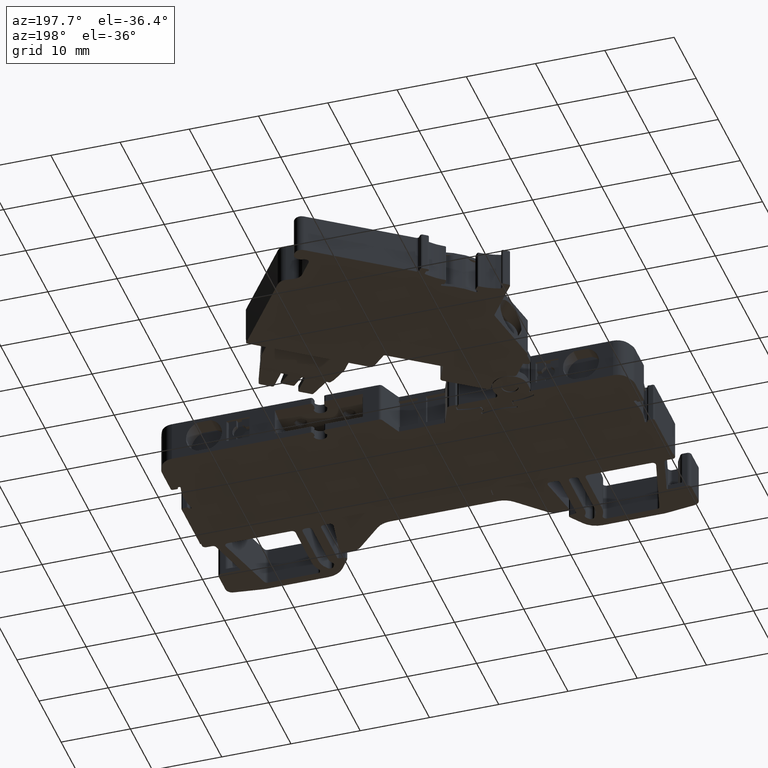
[diagram: clean part render]
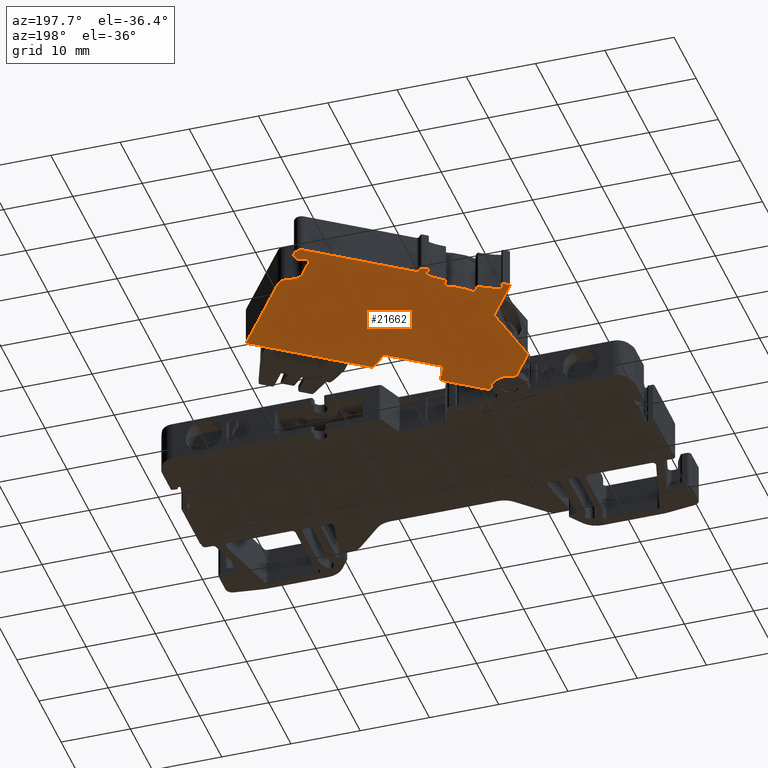
[diagram: same view with one face highlighted and labeled with its STEP entity id]
A machine part, auxiliary view. The second image highlights one B-rep face of the part: STEP entity #21662.
In plain terms, the highlighted planar face has unit normal (0, 0, -1).
Its self-contained STEP definition (entity closure, byte-faithful):
#700 = VECTOR ( 'NONE', #23447, 1000.000000000000100 ) ;
#717 = VECTOR ( 'NONE', #23469, 1000.000000000000100 ) ;
#783 = VECTOR ( 'NONE', #23351, 1000.000000000000100 ) ;
#788 = VECTOR ( 'NONE', #6425, 1000.000000000000000 ) ;
#835 = VECTOR ( 'NONE', #5893, 1000.000000000000100 ) ;
#917 = VECTOR ( 'NONE', #5982, 1000.000000000000200 ) ;
#924 = VECTOR ( 'NONE', #5881, 1000.000000000000100 ) ;
#1053 = VECTOR ( 'NONE', #13003, 1000.000000000000000 ) ;
#1070 = VECTOR ( 'NONE', #11539, 1000.000000000000100 ) ;
#1091 = VECTOR ( 'NONE', #12779, 999.9999999999998900 ) ;
#1103 = VECTOR ( 'NONE', #12953, 1000.000000000000100 ) ;
#1113 = VECTOR ( 'NONE', #2499, 1000.000000000000100 ) ;
#1115 = VECTOR ( 'NONE', #2659, 1000.000000000000000 ) ;
#1117 = VECTOR ( 'NONE', #2695, 1000.000000000000000 ) ;
#1126 = VECTOR ( 'NONE', #2687, 1000.000000000000100 ) ;
#1130 = VECTOR ( 'NONE', #2745, 1000.000000000000000 ) ;
#1133 = VECTOR ( 'NONE', #7653, 1000.000000000000100 ) ;
#1143 = VECTOR ( 'NONE', #2459, 1000.000000000000100 ) ;
#1146 = VECTOR ( 'NONE', #23941, 1000.000000000000100 ) ;
#1147 = VECTOR ( 'NONE', #2647, 1000.000000000000100 ) ;
#1152 = VECTOR ( 'NONE', #7640, 1000.000000000000000 ) ;
#1156 = VECTOR ( 'NONE', #2482, 1000.000000000000000 ) ;
#1163 = VECTOR ( 'NONE', #2593, 1000.000000000000200 ) ;
#1179 = VECTOR ( 'NONE', #2948, 1000.000000000000100 ) ;
#2172 = CARTESIAN_POINT ( 'NONE',  ( 1545.645344269823000, 749.8672034341224200, 0.02500000000000446300 ) ) ;
#2173 = CARTESIAN_POINT ( 'NONE',  ( 1549.949820601888400, 748.0747257587318000, 0.02500000000000453200 ) ) ;
#2174 = CARTESIAN_POINT ( 'NONE',  ( 1542.167171968362700, 754.2734593204847900, 0.02500000000000453200 ) ) ;
#2180 = CARTESIAN_POINT ( 'NONE',  ( 1578.243859838697300, 768.4322544557807100, 0.02500000000000453200 ) ) ;
#2197 = CARTESIAN_POINT ( 'NONE',  ( 1550.022041551051900, 748.1175780710666500, 0.02499999999999053700 ) ) ;
#2217 = CARTESIAN_POINT ( 'NONE',  ( 1548.559808128450900, 772.8035149347587100, 0.02500000000000498000 ) ) ;
#2221 = CARTESIAN_POINT ( 'NONE',  ( 1555.314814514132600, 752.3819858758643000, 0.02500000000000453200 ) ) ;
#2223 = CARTESIAN_POINT ( 'NONE',  ( 1544.620416316887000, 769.9931743566613700, 0.02500000000000446300 ) ) ;
#2232 = CARTESIAN_POINT ( 'NONE',  ( 1549.257869174789900, 748.3649681873449700, 0.02500000000000446300 ) ) ;
#2233 = CARTESIAN_POINT ( 'NONE',  ( 1545.017391081211600, 750.0254109928004000, 0.02499999999999742000 ) ) ;
#2239 = CARTESIAN_POINT ( 'NONE',  ( 1578.208847954300200, 768.2230316846704500, 0.02499999999998718500 ) ) ;
#2358 = CARTESIAN_POINT ( 'NONE',  ( 1549.292262403716900, 777.0771693380065700, 0.02500000000000500800 ) ) ;
#2371 = CARTESIAN_POINT ( 'NONE',  ( 1548.329333361161400, 773.1229423070923300, 0.02500000000000435900 ) ) ;
#2459 = DIRECTION ( 'NONE',  ( 0.8141155183560878600, 0.5807029557112640700, 0.0000000000000000000 ) ) ;
#2466 = LINE ( 'NONE', #2480, #1113 ) ;
#2468 = CARTESIAN_POINT ( 'NONE',  ( 1578.267675616652700, 768.3982891686437100, 0.02500000000000487600 ) ) ;
#2471 = LINE ( 'NONE', #2481, #1156 ) ;
#2475 = CARTESIAN_POINT ( 'NONE',  ( 1578.276221089455200, 768.3606137366117500, 0.02500000000000487900 ) ) ;
#2480 = CARTESIAN_POINT ( 'NONE',  ( 1578.208847954300200, 768.2230316846704500, 0.02500000000000487600 ) ) ;
#2481 = CARTESIAN_POINT ( 'NONE',  ( 1563.100120496002800, 757.9349518036500500, 0.02500000000000487600 ) ) ;
#2482 = DIRECTION ( 'NONE',  ( -0.7179306610667849400, 0.6961146212371991400, 0.0000000000000000000 ) ) ;
#2496 = CARTESIAN_POINT ( 'NONE',  ( 1578.243859838697300, 768.4322544557807100, 0.02500000000000453200 ) ) ;
#2497 = CARTESIAN_POINT ( 'NONE',  ( 1578.208847954300200, 768.2230316846704500, 0.02499999999998718500 ) ) ;
#2499 = DIRECTION ( 'NONE',  ( -0.8141155183561505900, -0.5807029557111761400, 0.0000000000000000000 ) ) ;
#2504 = CARTESIAN_POINT ( 'NONE',  ( 1550.931299757716500, 777.0176646037754200, 0.02500000000000487600 ) ) ;
#2506 = LINE ( 'NONE', #2504, #1143 ) ;
#2508 = CARTESIAN_POINT ( 'NONE',  ( 1578.263149612893100, 768.2801700064779900, 0.02500000000000487600 ) ) ;
#2510 = CARTESIAN_POINT ( 'NONE',  ( 1578.242870480602300, 768.2477166108531000, 0.02500000000000487600 ) ) ;
#2525 = CARTESIAN_POINT ( 'NONE',  ( 1544.384227316944800, 770.0034759140713700, 0.02500000000000349200 ) ) ;
#2536 = CARTESIAN_POINT ( 'NONE',  ( 1544.412993194512000, 769.9639885940533800, 0.02500000000000487600 ) ) ;
#2537 = CARTESIAN_POINT ( 'NONE',  ( 1544.587916787532800, 769.9558768462580900, 0.02500000000000487600 ) ) ;
#2538 = CARTESIAN_POINT ( 'NONE',  ( 1544.620416316887000, 769.9931743566613700, 0.02500000000000446300 ) ) ;
#2547 = CARTESIAN_POINT ( 'NONE',  ( 1544.547714493939800, 769.9383928987241500, 0.02500000000000487600 ) ) ;
#2551 = CARTESIAN_POINT ( 'NONE',  ( 1544.451904378278200, 769.9430521293959400, 0.02500000000000487900 ) ) ;
#2585 = LINE ( 'NONE', #2594, #1163 ) ;
#2593 = DIRECTION ( 'NONE',  ( -0.5807029557112654000, 0.8141155183560869800, 0.0000000000000000000 ) ) ;
#2594 = CARTESIAN_POINT ( 'NONE',  ( 1543.692002217491800, 764.2727847897043600, 0.02500000000000487600 ) ) ;
#2620 = CARTESIAN_POINT ( 'NONE',  ( 1564.391265894081900, 783.5477478650501600, 0.02500000000000487600 ) ) ;
#2625 = LINE ( 'NONE', #2620, #1115 ) ;
#2632 = CARTESIAN_POINT ( 'NONE',  ( 1569.989763542385600, 780.0040706808280200, 0.02500000000000487600 ) ) ;
#2641 = LINE ( 'NONE', #2632, #1147 ) ;
#2647 = DIRECTION ( 'NONE',  ( 0.5807029557112765000, -0.8141155183560789800, 0.0000000000000000000 ) ) ;
#2659 = DIRECTION ( 'NONE',  ( 0.5807029557112674000, -0.8141155183560855300, 0.0000000000000000000 ) ) ;
#2662 = LINE ( 'NONE', #2713, #1117 ) ;
#2668 = CARTESIAN_POINT ( 'NONE',  ( 1542.946394081146800, 770.5237180036012900, 0.02500000000000487600 ) ) ;
#2677 = CARTESIAN_POINT ( 'NONE',  ( 1549.085205381042000, 775.0075381443991800, 0.02500000000000487600 ) ) ;
#2680 = CARTESIAN_POINT ( 'NONE',  ( 1548.072052192599600, 774.1801339938563200, 0.02500000000000500800 ) ) ;
#2681 = CARTESIAN_POINT ( 'NONE',  ( 1549.503985585214900, 775.5153931642441900, 0.02500000000000500800 ) ) ;
#2683 = CARTESIAN_POINT ( 'NONE',  ( 1543.482342251324300, 770.9058888530069000, 0.02500000000000457400 ) ) ;
#2687 = DIRECTION ( 'NONE',  ( -0.8600056560176399000, -0.5102845006637657400, 0.0000000000000000000 ) ) ;
#2688 = CARTESIAN_POINT ( 'NONE',  ( 1549.257869174789900, 748.3649681873449700, 0.02500000000000446300 ) ) ;
#2691 = CARTESIAN_POINT ( 'NONE',  ( 1550.022041551052100, 748.1175780710666500, 0.02500000000000487600 ) ) ;
#2693 = CARTESIAN_POINT ( 'NONE',  ( 1548.607894250170100, 774.5624517542698900, 0.02500000000000487600 ) ) ;
#2695 = DIRECTION ( 'NONE',  ( -0.8141158089048291500, -0.5807025483767362900, 0.0000000000000000000 ) ) ;
#2701 = CARTESIAN_POINT ( 'NONE',  ( 1549.138020648467300, 748.7201717437481000, 0.02500000000000487600 ) ) ;
#2705 = CARTESIAN_POINT ( 'NONE',  ( 1541.753621434937500, 769.9867115334750500, 0.02500000000000500800 ) ) ;
#2706 = CARTESIAN_POINT ( 'NONE',  ( 1542.370153809011800, 770.2173255637733300, 0.02500000000000487600 ) ) ;
#2712 = LINE ( 'NONE', #2691, #1126 ) ;
#2713 = CARTESIAN_POINT ( 'NONE',  ( 1560.893413743320500, 759.7857187766621800, 0.02500000000000487600 ) ) ;
#2729 = CARTESIAN_POINT ( 'NONE',  ( 1548.950240188345300, 749.0348343259452100, 0.02500000000000487900 ) ) ;
#2734 = CARTESIAN_POINT ( 'NONE',  ( 1546.337416272470800, 750.1215802978725800, 0.02500000000000487900 ) ) ;
#2737 = CARTESIAN_POINT ( 'NONE',  ( 1578.208847954300200, 768.2230316846703300, 0.02499999999997643000 ) ) ;
#2740 = CARTESIAN_POINT ( 'NONE',  ( 1548.439462952112100, 749.5823833718608300, 0.02500000000000487200 ) ) ;
#2741 = CARTESIAN_POINT ( 'NONE',  ( 1547.085495024263500, 750.1451912939641000, 0.02500000000000487600 ) ) ;
#2744 = LINE ( 'NONE', #2737, #1130 ) ;
#2745 = DIRECTION ( 'NONE',  ( 0.8141155183561539200, 0.5807029557111715900, 0.0000000000000000000 ) ) ;
#2748 = CARTESIAN_POINT ( 'NONE',  ( 1545.982045812955900, 750.0328528439405300, 0.02500000000000487600 ) ) ;
#2749 = CARTESIAN_POINT ( 'NONE',  ( 1548.137984362159200, 749.7915765007501200, 0.02500000000000487600 ) ) ;
#2752 = CARTESIAN_POINT ( 'NONE',  ( 1545.645344269823000, 749.8672034341224200, 0.02500000000000446300 ) ) ;
#2754 = CARTESIAN_POINT ( 'NONE',  ( 1547.446637412791000, 750.0792230047820800, 0.02500000000000487600 ) ) ;
#2828 = CARTESIAN_POINT ( 'NONE',  ( 1545.416137601042900, 749.8022318956651600, 0.02500000000000418600 ) ) ;
#2833 = CARTESIAN_POINT ( 'NONE',  ( 1545.017391081211600, 750.0254109928004000, 0.02499999999999742000 ) ) ;
#2852 = CARTESIAN_POINT ( 'NONE',  ( 1545.188452804693500, 749.8595951775658900, 0.02500000000000418600 ) ) ;
#2854 = CARTESIAN_POINT ( 'NONE',  ( 1545.645344269823000, 749.8672034341224200, 0.02500000000000446300 ) ) ;
#2862 = CARTESIAN_POINT ( 'NONE',  ( 1545.085565529441100, 749.9298339413785500, 0.02500000000000418200 ) ) ;
#2867 = CARTESIAN_POINT ( 'NONE',  ( 1545.540022729736800, 749.8153372472201000, 0.02500000000000418600 ) ) ;
#2943 = LINE ( 'NONE', #2957, #1179 ) ;
#2948 = DIRECTION ( 'NONE',  ( 0.5807029557112232100, -0.8141155183561170600, 0.0000000000000000000 ) ) ;
#2957 = CARTESIAN_POINT ( 'NONE',  ( 1545.017391081211600, 750.0254109928004000, 0.02499999999997643000 ) ) ;
#5058 = VERTEX_POINT ( 'NONE', #18578 ) ;
#5059 = VERTEX_POINT ( 'NONE', #18579 ) ;
#5084 = VERTEX_POINT ( 'NONE', #18634 ) ;
#5090 = VERTEX_POINT ( 'NONE', #18639 ) ;
#5097 = VERTEX_POINT ( 'NONE', #18642 ) ;
#5106 = VERTEX_POINT ( 'NONE', #18618 ) ;
#5139 = VERTEX_POINT ( 'NONE', #18673 ) ;
#5144 = VERTEX_POINT ( 'NONE', #18667 ) ;
#5152 = VERTEX_POINT ( 'NONE', #18654 ) ;
#5164 = VERTEX_POINT ( 'NONE', #18708 ) ;
#5165 = VERTEX_POINT ( 'NONE', #18656 ) ;
#5172 = VERTEX_POINT ( 'NONE', #18663 ) ;
#5192 = VERTEX_POINT ( 'NONE', #18699 ) ;
#5206 = VERTEX_POINT ( 'NONE', #18750 ) ;
#5224 = VERTEX_POINT ( 'NONE', #18744 ) ;
#5237 = VERTEX_POINT ( 'NONE', #18760 ) ;
#5239 = VERTEX_POINT ( 'NONE', #18728 ) ;
#5250 = VERTEX_POINT ( 'NONE', #18715 ) ;
#5257 = VERTEX_POINT ( 'NONE', #18799 ) ;
#5271 = VERTEX_POINT ( 'NONE', #18874 ) ;
#5273 = VERTEX_POINT ( 'NONE', #18804 ) ;
#5281 = VERTEX_POINT ( 'NONE', #18831 ) ;
#5286 = VERTEX_POINT ( 'NONE', #18855 ) ;
#5290 = VERTEX_POINT ( 'NONE', #18800 ) ;
#5292 = VERTEX_POINT ( 'NONE', #18833 ) ;
#5298 = VERTEX_POINT ( 'NONE', #18816 ) ;
#5306 = VERTEX_POINT ( 'NONE', #18825 ) ;
#5316 = VERTEX_POINT ( 'NONE', #18925 ) ;
#5318 = VERTEX_POINT ( 'NONE', #18909 ) ;
#5321 = VERTEX_POINT ( 'NONE', #18985 ) ;
#5322 = VERTEX_POINT ( 'NONE', #18978 ) ;
#5329 = VERTEX_POINT ( 'NONE', #18918 ) ;
#5330 = VERTEX_POINT ( 'NONE', #18969 ) ;
#5332 = VERTEX_POINT ( 'NONE', #18936 ) ;
#5338 = VERTEX_POINT ( 'NONE', #18992 ) ;
#5347 = VERTEX_POINT ( 'NONE', #18923 ) ;
#5353 = VERTEX_POINT ( 'NONE', #18957 ) ;
#5377 = VERTEX_POINT ( 'NONE', #18901 ) ;
#5384 = VERTEX_POINT ( 'NONE', #19063 ) ;
#5392 = VERTEX_POINT ( 'NONE', #19077 ) ;
#5402 = VERTEX_POINT ( 'NONE', #19011 ) ;
#5410 = VERTEX_POINT ( 'NONE', #19053 ) ;
#5412 = VERTEX_POINT ( 'NONE', #19107 ) ;
#5414 = VERTEX_POINT ( 'NONE', #19112 ) ;
#5415 = VERTEX_POINT ( 'NONE', #19032 ) ;
#5417 = VERTEX_POINT ( 'NONE', #19067 ) ;
#5421 = VERTEX_POINT ( 'NONE', #19065 ) ;
#5440 = VERTEX_POINT ( 'NONE', #19025 ) ;
#5444 = VERTEX_POINT ( 'NONE', #19137 ) ;
#5450 = VERTEX_POINT ( 'NONE', #19132 ) ;
#5468 = VERTEX_POINT ( 'NONE', #19118 ) ;
#5473 = VERTEX_POINT ( 'NONE', #19135 ) ;
#5479 = VERTEX_POINT ( 'NONE', #19191 ) ;
#5572 = VERTEX_POINT ( 'NONE', #19367 ) ;
#5590 = VERTEX_POINT ( 'NONE', #19424 ) ;
#5591 = VERTEX_POINT ( 'NONE', #19406 ) ;
#5598 = VERTEX_POINT ( 'NONE', #19408 ) ;
#5605 = VERTEX_POINT ( 'NONE', #19391 ) ;
#5633 = VERTEX_POINT ( 'NONE', #19404 ) ;
#5635 = VERTEX_POINT ( 'NONE', #19503 ) ;
#5672 = VERTEX_POINT ( 'NONE', #19473 ) ;
#5702 = VERTEX_POINT ( 'NONE', #19593 ) ;
#5705 = VERTEX_POINT ( 'NONE', #19565 ) ;
#5722 = VERTEX_POINT ( 'NONE', #19642 ) ;
#5866 = CARTESIAN_POINT ( 'NONE',  ( 1544.593081556619400, 769.7106663991814900, 0.02500000000000331800 ) ) ;
#5881 = DIRECTION ( 'NONE',  ( 0.5806941885759417900, -0.8141217718217149700, 0.0000000000000000000 ) ) ;
#5887 = LINE ( 'NONE', #5866, #924 ) ;
#5893 = DIRECTION ( 'NONE',  ( -0.8141155183560914200, -0.5807029557112590700, 0.0000000000000000000 ) ) ;
#5897 = LINE ( 'NONE', #5898, #835 ) ;
#5898 = CARTESIAN_POINT ( 'NONE',  ( 1544.362139116946100, 770.2927518746314500, 0.02500000000000505300 ) ) ;
#5908 = CARTESIAN_POINT ( 'NONE',  ( 1550.280497314614200, 777.4134407334703400, 0.02500000000000500800 ) ) ;
#5919 = CARTESIAN_POINT ( 'NONE',  ( 1550.234893457553400, 777.4773749830983400, 0.02500000000000505300 ) ) ;
#5945 = CARTESIAN_POINT ( 'NONE',  ( 1548.050359660200500, 773.1696176818418300, 0.02500000000000498000 ) ) ;
#5946 = CARTESIAN_POINT ( 'NONE',  ( 1549.862089176414400, 777.4834911779709000, 0.02500000000000500800 ) ) ;
#5947 = CARTESIAN_POINT ( 'NONE',  ( 1548.080766385438900, 773.1269890252531200, 0.02500000000000505300 ) ) ;
#5951 = CARTESIAN_POINT ( 'NONE',  ( 1550.163253741964800, 777.5221442594848900, 0.02500000000000505600 ) ) ;
#5953 = CARTESIAN_POINT ( 'NONE',  ( 1549.926030409045100, 777.5290852436369300, 0.02500000000000505600 ) ) ;
#5965 = LINE ( 'NONE', #5971, #917 ) ;
#5971 = CARTESIAN_POINT ( 'NONE',  ( 1540.630225523374700, 770.2011094274361100, 0.02500000000000245100 ) ) ;
#5982 = DIRECTION ( 'NONE',  ( -0.4148097796170376900, -0.9099081529110861800, 0.0000000000000000000 ) ) ;
#5983 = CARTESIAN_POINT ( 'NONE',  ( 1550.008345451266500, 777.5480792106229700, 0.02500000000000505300 ) ) ;
#5994 = CARTESIAN_POINT ( 'NONE',  ( 1548.286706573312400, 773.0925329621482000, 0.02500000000000505600 ) ) ;
#5998 = CARTESIAN_POINT ( 'NONE',  ( 1548.329333361161400, 773.1229423070923300, 0.02500000000000435900 ) ) ;
#6007 = CARTESIAN_POINT ( 'NONE',  ( 1549.712825437355800, 776.5736346636400600, 0.02500000000000500800 ) ) ;
#6008 = CARTESIAN_POINT ( 'NONE',  ( 1548.231823383265000, 773.0798595148261300, 0.02500000000000505300 ) ) ;
#6014 = CARTESIAN_POINT ( 'NONE',  ( 1548.128535224690500, 773.0971407620983200, 0.02500000000000505600 ) ) ;
#6019 = CARTESIAN_POINT ( 'NONE',  ( 1549.631338974397700, 776.6405469513625800, 0.02500000000000487600 ) ) ;
#6032 = CARTESIAN_POINT ( 'NONE',  ( 1549.681004830916000, 776.6172521876778800, 0.02500000000000487600 ) ) ;
#6054 = CARTESIAN_POINT ( 'NONE',  ( 1549.576323335966400, 776.6358420617663100, 0.02500000000000500800 ) ) ;
#6057 = CARTESIAN_POINT ( 'NONE',  ( 1540.666154416801400, 770.2799214387736100, 0.02500000000000392500 ) ) ;
#6058 = CARTESIAN_POINT ( 'NONE',  ( 1540.648940576542800, 770.1758909131655200, 0.02500000000000487600 ) ) ;
#6073 = CARTESIAN_POINT ( 'NONE',  ( 1540.644284779498100, 770.2305542837534600, 0.02500000000000487600 ) ) ;
#6083 = CARTESIAN_POINT ( 'NONE',  ( 1540.680523311985800, 770.1305945284771000, 0.02500000000000500800 ) ) ;
#6084 = CARTESIAN_POINT ( 'NONE',  ( 1544.437430142952700, 770.3464564415570500, 0.02500000000000505300 ) ) ;
#6091 = CARTESIAN_POINT ( 'NONE',  ( 1548.050359660200500, 773.1696176818418300, 0.02500000000000498000 ) ) ;
#6108 = CARTESIAN_POINT ( 'NONE',  ( 1544.393618425567900, 770.3152058472535400, 0.02500000000000500800 ) ) ;
#6109 = CARTESIAN_POINT ( 'NONE',  ( 1544.468209955846300, 770.5587588963154500, 0.02500000000000505600 ) ) ;
#6110 = CARTESIAN_POINT ( 'NONE',  ( 1548.048667946692100, 773.1719893767095800, 0.02500000000000505300 ) ) ;
#6118 = CARTESIAN_POINT ( 'NONE',  ( 1548.045441568350000, 773.1768413719754600, 0.02500000000000500800 ) ) ;
#6119 = CARTESIAN_POINT ( 'NONE',  ( 1548.047028060987900, 773.1743980397733400, 0.02500000000000505300 ) ) ;
#6125 = CARTESIAN_POINT ( 'NONE',  ( 1544.467687015060400, 770.3960744890162000, 0.02500000000000505600 ) ) ;
#6129 = CARTESIAN_POINT ( 'NONE',  ( 1544.483129891129700, 770.5025910721233200, 0.02500000000000505300 ) ) ;
#6130 = CARTESIAN_POINT ( 'NONE',  ( 1544.435077056206400, 770.6011649947684000, 0.02500000000000500800 ) ) ;
#6419 = CARTESIAN_POINT ( 'NONE',  ( 1549.292262403716900, 777.0771693380066800, 0.02500000000000505300 ) ) ;
#6425 = DIRECTION ( 'NONE',  ( 0.8142044373841202900, 0.5805782756390460700, 0.0000000000000000000 ) ) ;
#6443 = LINE ( 'NONE', #6419, #788 ) ;
#7108 = CARTESIAN_POINT ( 'NONE',  ( 1549.822555468337700, 748.0130236262017400, 0.02500000000000418600 ) ) ;
#7116 = CARTESIAN_POINT ( 'NONE',  ( 1549.949820601888400, 748.0747257587318000, 0.02500000000000453200 ) ) ;
#7370 = EDGE_CURVE ( 'NONE', #5672, #5590, #23693, .T. ) ;
#7428 = EDGE_CURVE ( 'NONE', #5572, #5633, #23738, .T. ) ;
#7438 = EDGE_CURVE ( 'NONE', #5598, #5672, #23775, .T. ) ;
#7465 = EDGE_CURVE ( 'NONE', #18433, #5598, #23721, .T. ) ;
#7483 = EDGE_CURVE ( 'NONE', #5702, #18461, #23349, .T. ) ;
#7493 = EDGE_CURVE ( 'NONE', #5705, #5702, #23771, .T. ) ;
#7501 = EDGE_CURVE ( 'NONE', #5633, #5722, #23743, .T. ) ;
#7503 = EDGE_CURVE ( 'NONE', #5144, #5705, #23444, .T. ) ;
#7505 = EDGE_CURVE ( 'NONE', #5172, #5590, #23463, .T. ) ;
#7537 = EDGE_CURVE ( 'NONE', #18433, #5097, #6443, .T. ) ;
#7558 = EDGE_CURVE ( 'NONE', #5722, #5106, #5887, .T. ) ;
#7562 = EDGE_CURVE ( 'NONE', #5164, #5572, #5897, .T. ) ;
#7578 = EDGE_CURVE ( 'NONE', #5058, #5152, #5965, .T. ) ;
#7580 = EDGE_CURVE ( 'NONE', #5239, #5097, #23719, .T. ) ;
#7589 = EDGE_CURVE ( 'NONE', #5084, #18461, #23750, .T. ) ;
#7600 = EDGE_CURVE ( 'NONE', #5139, #5172, #23757, .T. ) ;
#7609 = EDGE_CURVE ( 'NONE', #5152, #5090, #23725, .T. ) ;
#7616 = EDGE_CURVE ( 'NONE', #5192, #5084, #23766, .T. ) ;
#7624 = EDGE_CURVE ( 'NONE', #5164, #5165, #23761, .T. ) ;
#7640 = DIRECTION ( 'NONE',  ( 0.6361376897563233400, 0.7715755566835225100, 0.0000000000000000000 ) ) ;
#7641 = CARTESIAN_POINT ( 'NONE',  ( 1547.083556792264300, 772.1154031745319300, 0.02500000000000487600 ) ) ;
#7642 = CARTESIAN_POINT ( 'NONE',  ( 1545.751553062064400, 771.1650501149126700, 0.02500000000000487900 ) ) ;
#7648 = LINE ( 'NONE', #7650, #1152 ) ;
#7650 = CARTESIAN_POINT ( 'NONE',  ( 1549.503985585214700, 775.5153931642441900, 0.02500000000000505300 ) ) ;
#7653 = DIRECTION ( 'NONE',  ( 0.8140626700467686900, 0.5807770391779669700, 0.0000000000000000000 ) ) ;
#7658 = LINE ( 'NONE', #7665, #1133 ) ;
#7665 = CARTESIAN_POINT ( 'NONE',  ( 1543.482342251324300, 770.9058888530066700, 0.02500000000000331800 ) ) ;
#9975 = AXIS2_PLACEMENT_3D ( 'NONE', #27903, #27858, #27870 ) ;
#10128 = VECTOR ( 'NONE', #16902, 1000.000000000000100 ) ;
#10132 = VECTOR ( 'NONE', #16944, 1000.000000000000100 ) ;
#10136 = VECTOR ( 'NONE', #16926, 1000.000000000000100 ) ;
#10174 = VECTOR ( 'NONE', #16948, 1000.000000000000100 ) ;
#10179 = VECTOR ( 'NONE', #17000, 1000.000000000000100 ) ;
#10190 = VECTOR ( 'NONE', #17242, 1000.000000000000000 ) ;
#10199 = VECTOR ( 'NONE', #17183, 1000.000000000000100 ) ;
#10202 = VECTOR ( 'NONE', #16960, 1000.000000000000100 ) ;
#10897 = EDGE_LOOP ( 'NONE', ( #22385, #22433, #22341, #22343, #22455, #22407, #22446, #22479, #22389, #22501, #22461, #22448, #22417, #22437, #22443, #22487, #22486, #22539, #22546, #22565, #22569, #22521, #22528, #22542, #22481, #22520, #22551, #22518, #22544, #22507, #22538, #22421, #22453, #22491, #22548, #22554, #22567, #22568, #22525, #22553, #22570, #22561, #22523, #22504, #22519, #22541, #22522, #22552, #22555, #22563, #22463, #22524, #22418, #22526, #22482, #22483, #22473, #22457, #22511, #22459, #22537, #22484, #22460, #22466, #22560, #22419, #22493, #22496, #22550, #22425, #22549, #22426, #22559, #22435, #22506, #22556, #22540 ) ) ;
#11375 = CARTESIAN_POINT ( 'NONE',  ( 1564.160681782337600, 786.4540910945069100, 0.02500000000000453200 ) ) ;
#11388 = CARTESIAN_POINT ( 'NONE',  ( 1547.764482316524200, 773.9607704893909400, 0.02500000000000500800 ) ) ;
#11403 = CARTESIAN_POINT ( 'NONE',  ( 1547.712851722780400, 773.9239467661913100, 0.02500000000000505300 ) ) ;
#11406 = CARTESIAN_POINT ( 'NONE',  ( 1564.373816726641300, 786.6061187728054200, 0.02500000000000418600 ) ) ;
#11419 = CARTESIAN_POINT ( 'NONE',  ( 1564.648223377231500, 786.6694705398599600, 0.02500000000000418600 ) ) ;
#11458 = CARTESIAN_POINT ( 'NONE',  ( 1547.680614652629400, 773.8613587784861900, 0.02500000000000505300 ) ) ;
#11469 = CARTESIAN_POINT ( 'NONE',  ( 1547.680548324151200, 773.7979423419343400, 0.02500000000000540000 ) ) ;
#11476 = CARTESIAN_POINT ( 'NONE',  ( 1548.559808128450900, 772.8035149347587100, 0.02500000000000498000 ) ) ;
#11505 = CARTESIAN_POINT ( 'NONE',  ( 1549.947416147146400, 776.0532329875754800, 0.02500000000000500800 ) ) ;
#11520 = LINE ( 'NONE', #11565, #1070 ) ;
#11522 = CARTESIAN_POINT ( 'NONE',  ( 1549.990358940165400, 776.1060621763956500, 0.02500000000000487600 ) ) ;
#11524 = CARTESIAN_POINT ( 'NONE',  ( 1547.797641192692900, 772.5031659378776100, 0.02500000000000487600 ) ) ;
#11539 = DIRECTION ( 'NONE',  ( -0.5807029557122249700, 0.8141155183554024100, 0.0000000000000000000 ) ) ;
#11565 = CARTESIAN_POINT ( 'NONE',  ( 1565.555500256405100, 786.2206785318620600, 0.02499999999997643000 ) ) ;
#11590 = CARTESIAN_POINT ( 'NONE',  ( 1549.993442950702700, 776.1793452341232800, 0.02500000000000487600 ) ) ;
#11642 = CARTESIAN_POINT ( 'NONE',  ( 1549.953802712395800, 776.2357512736144800, 0.02500000000000500800 ) ) ;
#11711 = CARTESIAN_POINT ( 'NONE',  ( 1566.863669113997700, 780.5806122920482700, 0.02500000000000486900 ) ) ;
#11715 = CARTESIAN_POINT ( 'NONE',  ( 1567.346183177058900, 780.5030820469941100, 0.02500000000000486900 ) ) ;
#11750 = CARTESIAN_POINT ( 'NONE',  ( 1566.266326321608400, 780.9193299754234700, 0.02500000000000487600 ) ) ;
#11777 = CARTESIAN_POINT ( 'NONE',  ( 1567.217987902439700, 780.5072658687130300, 0.02500000000000487600 ) ) ;
#11783 = CARTESIAN_POINT ( 'NONE',  ( 1567.475437109915000, 780.5154374027749800, 0.02499999999999742000 ) ) ;
#11796 = CARTESIAN_POINT ( 'NONE',  ( 1566.110495203601000, 781.1374772667587600, 0.02500000000000453200 ) ) ;
#11800 = CARTESIAN_POINT ( 'NONE',  ( 1566.960003841623600, 780.5548857282633400, 0.02500000000000487600 ) ) ;
#11803 = CARTESIAN_POINT ( 'NONE',  ( 1567.059067131960800, 780.5331696177358900, 0.02500000000000487600 ) ) ;
#11806 = CARTESIAN_POINT ( 'NONE',  ( 1566.466456815473100, 780.7545095339018000, 0.02500000000000487200 ) ) ;
#11825 = CARTESIAN_POINT ( 'NONE',  ( 1566.770421567570300, 780.6158598590381000, 0.02500000000000487900 ) ) ;
#11830 = CARTESIAN_POINT ( 'NONE',  ( 1567.024913033640400, 780.5398504642298600, 0.02500000000000487900 ) ) ;
#11843 = CARTESIAN_POINT ( 'NONE',  ( 1544.059093024249500, 771.0823790161830400, 0.02500000000000500800 ) ) ;
#11862 = CARTESIAN_POINT ( 'NONE',  ( 1550.727293260809300, 776.9626180094519400, 0.02500000000000487900 ) ) ;
#11865 = CARTESIAN_POINT ( 'NONE',  ( 1550.898448832194800, 776.9946301938288100, 0.02500000000000488300 ) ) ;
#11868 = CARTESIAN_POINT ( 'NONE',  ( 1543.879799694448600, 771.1644768809801500, 0.02500000000000505300 ) ) ;
#11882 = CARTESIAN_POINT ( 'NONE',  ( 1543.980562239121100, 771.1498729120245300, 0.02500000000000505600 ) ) ;
#11889 = CARTESIAN_POINT ( 'NONE',  ( 1550.747603669471800, 776.9613290683723800, 0.02500000000000487600 ) ) ;
#11893 = CARTESIAN_POINT ( 'NONE',  ( 1564.298323653260500, 783.8380993429052500, 0.02500000000000446300 ) ) ;
#11896 = CARTESIAN_POINT ( 'NONE',  ( 1543.785338394632800, 771.1220555063465600, 0.02500000000000392500 ) ) ;
#11903 = CARTESIAN_POINT ( 'NONE',  ( 1544.027750174502200, 771.1224940675882600, 0.02500000000000505300 ) ) ;
#11913 = CARTESIAN_POINT ( 'NONE',  ( 1543.826780434113500, 771.1516215162776000, 0.02500000000000505600 ) ) ;
#11923 = CARTESIAN_POINT ( 'NONE',  ( 1550.808603381688000, 776.9656489351377800, 0.02500000000000487600 ) ) ;
#11927 = CARTESIAN_POINT ( 'NONE',  ( 1550.561576517561200, 777.0205358199866600, 0.02500000000000488600 ) ) ;
#11930 = CARTESIAN_POINT ( 'NONE',  ( 1564.298694176470700, 783.7315171070868000, 0.02500000000000487600 ) ) ;
#11933 = CARTESIAN_POINT ( 'NONE',  ( 1550.512854215496400, 777.0876883725690000, 0.02500000000000500800 ) ) ;
#11939 = CARTESIAN_POINT ( 'NONE',  ( 1564.329674923411200, 783.6347332811350300, 0.02500000000000487600 ) ) ;
#11949 = CARTESIAN_POINT ( 'NONE',  ( 1550.628699902990300, 776.9795958562981500, 0.02500000000000487600 ) ) ;
#11957 = CARTESIAN_POINT ( 'NONE',  ( 1550.863668372497400, 776.9787469754259100, 0.02500000000000487900 ) ) ;
#11970 = CARTESIAN_POINT ( 'NONE',  ( 1550.789407960994100, 776.9629644427934600, 0.02500000000000487900 ) ) ;
#11976 = CARTESIAN_POINT ( 'NONE',  ( 1564.391265894081900, 783.5477478650501600, 0.02500000000000453200 ) ) ;
#12002 = CARTESIAN_POINT ( 'NONE',  ( 1550.931299757716500, 777.0176646037754200, 0.02500000000000474800 ) ) ;
#12060 = CARTESIAN_POINT ( 'NONE',  ( 1564.920460321673300, 784.4370214614737100, 0.02500000000000446300 ) ) ;
#12107 = CARTESIAN_POINT ( 'NONE',  ( 1564.820125102552800, 784.4332874662537700, 0.02500000000000487600 ) ) ;
#12151 = CARTESIAN_POINT ( 'NONE',  ( 1569.152402825198600, 780.6065245906280600, 0.02500000000000418600 ) ) ;
#12180 = CARTESIAN_POINT ( 'NONE',  ( 1569.837735864086700, 780.2172056251316700, 0.02500000000000418200 ) ) ;
#12185 = CARTESIAN_POINT ( 'NONE',  ( 1569.628857432471900, 780.3893917165245300, 0.02500000000000418600 ) ) ;
#12189 = CARTESIAN_POINT ( 'NONE',  ( 1568.624821636070200, 780.6261105448119200, 0.02499999999999742000 ) ) ;
#12194 = CARTESIAN_POINT ( 'NONE',  ( 1569.989763542385600, 780.0040706808280200, 0.02500000000000453200 ) ) ;
#12212 = CARTESIAN_POINT ( 'NONE',  ( 1564.728991250715600, 784.4024025134650600, 0.02500000000000487600 ) ) ;
#12217 = CARTESIAN_POINT ( 'NONE',  ( 1564.647058766161300, 784.3443666031078000, 0.02500000000000435900 ) ) ;
#12220 = CARTESIAN_POINT ( 'NONE',  ( 1568.885415751420600, 780.6512029041451800, 0.02500000000000418600 ) ) ;
#12550 = CARTESIAN_POINT ( 'NONE',  ( 1542.167171968362700, 754.2734593204847900, 0.02500000000000453200 ) ) ;
#12585 = CARTESIAN_POINT ( 'NONE',  ( 1542.162610980133600, 754.2462039295581900, 0.02500000000000418600 ) ) ;
#12628 = CARTESIAN_POINT ( 'NONE',  ( 1539.694073611396800, 770.2304873775221900, 0.02500000000000505300 ) ) ;
#12647 = CARTESIAN_POINT ( 'NONE',  ( 1539.645723558955800, 770.1366102111558100, 0.02500000000000505300 ) ) ;
#12671 = CARTESIAN_POINT ( 'NONE',  ( 1539.771512456578900, 770.2857239689766400, 0.02500000000000500800 ) ) ;
#12674 = CARTESIAN_POINT ( 'NONE',  ( 1539.645637794666800, 770.0414906741909800, 0.02500000000000496600 ) ) ;
#12676 = CARTESIAN_POINT ( 'NONE',  ( 1542.160314769131700, 754.2185698973787600, 0.02500000000000418600 ) ) ;
#12678 = CARTESIAN_POINT ( 'NONE',  ( 1542.160314769131700, 754.1909355175560000, 0.02500000000000446300 ) ) ;
#12728 = CARTESIAN_POINT ( 'NONE',  ( 1542.160685292341900, 754.0843532817369800, 0.02500000000000487600 ) ) ;
#12733 = CARTESIAN_POINT ( 'NONE',  ( 1542.160314769131700, 754.1909355175560000, 0.02500000000000446300 ) ) ;
#12752 = CARTESIAN_POINT ( 'NONE',  ( 1555.362740998314400, 752.1670331971045000, 0.02500000000000446300 ) ) ;
#12754 = CARTESIAN_POINT ( 'NONE',  ( 1542.191666039282800, 753.9875694557852100, 0.02500000000000487600 ) ) ;
#12761 = CARTESIAN_POINT ( 'NONE',  ( 1555.323386143934400, 751.9377154887816900, 0.02500000000000487600 ) ) ;
#12762 = CARTESIAN_POINT ( 'NONE',  ( 1555.246088759654900, 751.8438547313317000, 0.02499999999998527700 ) ) ;
#12765 = CARTESIAN_POINT ( 'NONE',  ( 1542.253257009954000, 753.9005840397005600, 0.02499999999998527700 ) ) ;
#12768 = CARTESIAN_POINT ( 'NONE',  ( 1541.095316306356800, 769.7405419748952200, 0.02500000000000505300 ) ) ;
#12779 = DIRECTION ( 'NONE',  ( 0.9366538191802265000, 0.3502565103107946300, 0.0000000000000000000 ) ) ;
#12783 = CARTESIAN_POINT ( 'NONE',  ( 1555.362270223487500, 752.0454416440393300, 0.02500000000000487600 ) ) ;
#12812 = LINE ( 'NONE', #12768, #1091 ) ;
#12890 = CARTESIAN_POINT ( 'NONE',  ( 1563.100120496003000, 757.9349518036498200, 0.02500000000000886900 ) ) ;
#12953 = DIRECTION ( 'NONE',  ( 0.4248076655325260200, -0.9052836280993960000, 0.0000000000000000000 ) ) ;
#12956 = CARTESIAN_POINT ( 'NONE',  ( 1565.700675995333500, 786.0171496522732500, 0.02499999999999742000 ) ) ;
#12960 = CARTESIAN_POINT ( 'NONE',  ( 1563.541927260359200, 757.7911618266415400, 0.02500000000000418600 ) ) ;
#12976 = LINE ( 'NONE', #12989, #1103 ) ;
#12979 = CARTESIAN_POINT ( 'NONE',  ( 1565.807559579677000, 785.8669774729830800, 0.02500000000000487600 ) ) ;
#12982 = CARTESIAN_POINT ( 'NONE',  ( 1563.256241750209000, 757.8221198474119500, 0.02500000000000418600 ) ) ;
#12984 = CARTESIAN_POINT ( 'NONE',  ( 1555.362740998314400, 752.1670331971045000, 0.02500000000000446300 ) ) ;
#12989 = CARTESIAN_POINT ( 'NONE',  ( 1554.200428468464900, 754.7567910509563900, 0.02500000000000487600 ) ) ;
#12995 = CARTESIAN_POINT ( 'NONE',  ( 1548.072052192599600, 774.1801339938563200, 0.02500000000000505300 ) ) ;
#13003 = DIRECTION ( 'NONE',  ( 0.8141454959995893000, 0.5806609263103405000, 0.0000000000000000000 ) ) ;
#13010 = CARTESIAN_POINT ( 'NONE',  ( 1563.631166504857000, 757.8248725607654700, 0.02499999999999238900 ) ) ;
#13015 = CARTESIAN_POINT ( 'NONE',  ( 1563.168606928209300, 757.8685464954479600, 0.02500000000000418200 ) ) ;
#13018 = CARTESIAN_POINT ( 'NONE',  ( 1555.362740998314400, 752.2410355988272400, 0.02500000000000418600 ) ) ;
#13023 = CARTESIAN_POINT ( 'NONE',  ( 1539.645637794666800, 770.0414906741909800, 0.02500000000000496600 ) ) ;
#13024 = CARTESIAN_POINT ( 'NONE',  ( 1543.778087259082900, 763.8999095089197900, 0.02500000000000453200 ) ) ;
#13025 = CARTESIAN_POINT ( 'NONE',  ( 1539.701488687785300, 769.8672784267564600, 0.02500000000000496600 ) ) ;
#13026 = CARTESIAN_POINT ( 'NONE',  ( 1555.346251301652300, 752.3149927131448700, 0.02500000000000418600 ) ) ;
#13030 = CARTESIAN_POINT ( 'NONE',  ( 1543.769802613808000, 764.1626995054441500, 0.02500000000000487600 ) ) ;
#13033 = CARTESIAN_POINT ( 'NONE',  ( 1563.443058802490200, 757.7833949924462300, 0.02500000000000418600 ) ) ;
#13041 = CARTESIAN_POINT ( 'NONE',  ( 1543.799503209505900, 764.0314093330436000, 0.02500000000000487600 ) ) ;
#13043 = CARTESIAN_POINT ( 'NONE',  ( 1543.692002217492000, 764.2727847897043600, 0.02500000000000474800 ) ) ;
#13047 = CARTESIAN_POINT ( 'NONE',  ( 1555.314814514132600, 752.3819858758643000, 0.02500000000000453200 ) ) ;
#13050 = LINE ( 'NONE', #12995, #1053 ) ;
#13053 = CARTESIAN_POINT ( 'NONE',  ( 1561.216448487227100, 759.7613839342620800, 0.02500000000000886900 ) ) ;
#13055 = CARTESIAN_POINT ( 'NONE',  ( 1548.662501291450100, 772.9463843435798900, 0.02500000000000487600 ) ) ;
#13059 = CARTESIAN_POINT ( 'NONE',  ( 1548.655267635869700, 772.9896186255520000, 0.02500000000000487600 ) ) ;
#13060 = CARTESIAN_POINT ( 'NONE',  ( 1548.559808128450900, 772.8035149347587100, 0.02500000000000498000 ) ) ;
#13062 = CARTESIAN_POINT ( 'NONE',  ( 1548.634800484461300, 772.8545601904689900, 0.02500000000000487900 ) ) ;
#13070 = CARTESIAN_POINT ( 'NONE',  ( 1565.701900026980900, 784.8288191603516000, 0.02500000000000487600 ) ) ;
#13072 = CARTESIAN_POINT ( 'NONE',  ( 1548.626949921212400, 773.0301751129410400, 0.02500000000000500800 ) ) ;
#13081 = CARTESIAN_POINT ( 'NONE',  ( 1565.105037260486100, 784.4434725179183900, 0.02500000000000487600 ) ) ;
#13086 = CARTESIAN_POINT ( 'NONE',  ( 1564.442165821960800, 784.1976973568708900, 0.02500000000000487600 ) ) ;
#13088 = CARTESIAN_POINT ( 'NONE',  ( 1560.999460333678600, 759.8367918693794500, 0.02500000000000487600 ) ) ;
#13091 = CARTESIAN_POINT ( 'NONE',  ( 1539.645723202814900, 769.9795305784766700, 0.02500000000000505300 ) ) ;
#13096 = CARTESIAN_POINT ( 'NONE',  ( 1564.390380511029900, 784.1375530980498100, 0.02500000000000487900 ) ) ;
#13098 = CARTESIAN_POINT ( 'NONE',  ( 1564.317249654003900, 783.9965195028776200, 0.02500000000000487600 ) ) ;
#13102 = CARTESIAN_POINT ( 'NONE',  ( 1564.507972175404800, 784.2451571020834500, 0.02500000000000435900 ) ) ;
#13103 = CARTESIAN_POINT ( 'NONE',  ( 1565.864523789105500, 785.1585998713865100, 0.02500000000000487600 ) ) ;
#13104 = CARTESIAN_POINT ( 'NONE',  ( 1539.665508672261000, 769.9177205481564700, 0.02500000000000505300 ) ) ;
#13108 = CARTESIAN_POINT ( 'NONE',  ( 1564.298752510919000, 783.9202071836914500, 0.02500000000000487600 ) ) ;
#13111 = CARTESIAN_POINT ( 'NONE',  ( 1565.868452707974000, 785.7000774391548200, 0.02500000000000487900 ) ) ;
#13112 = CARTESIAN_POINT ( 'NONE',  ( 1561.119212917549700, 759.8272734157010300, 0.02500000000000487900 ) ) ;
#13113 = CARTESIAN_POINT ( 'NONE',  ( 1564.298323653260500, 783.8380993429052500, 0.02500000000000446300 ) ) ;
#13119 = CARTESIAN_POINT ( 'NONE',  ( 1548.605075252309700, 772.8218732004988900, 0.02500000000000487600 ) ) ;
#13123 = CARTESIAN_POINT ( 'NONE',  ( 1560.944152706247500, 759.8213539140870100, 0.02500000000000487600 ) ) ;
#13125 = CARTESIAN_POINT ( 'NONE',  ( 1565.898196090791500, 785.3335851424448000, 0.02500000000000487200 ) ) ;
#13132 = CARTESIAN_POINT ( 'NONE',  ( 1565.583013385016100, 784.6958395332012500, 0.02500000000000487600 ) ) ;
#13137 = CARTESIAN_POINT ( 'NONE',  ( 1547.680548324151200, 773.7979423419343400, 0.02500000000000540000 ) ) ;
#13138 = CARTESIAN_POINT ( 'NONE',  ( 1565.274463260917400, 784.4965263435526600, 0.02500000000000487900 ) ) ;
#13141 = CARTESIAN_POINT ( 'NONE',  ( 1561.172188574721800, 759.8036757553443300, 0.02500000000000487600 ) ) ;
#13143 = CARTESIAN_POINT ( 'NONE',  ( 1560.893413743320500, 759.7857187766621800, 0.02500000000000453200 ) ) ;
#13148 = CARTESIAN_POINT ( 'NONE',  ( 1564.920460321673300, 784.4370214614737100, 0.02500000000000446300 ) ) ;
#13158 = CARTESIAN_POINT ( 'NONE',  ( 1547.712873306263900, 773.6890244891825400, 0.02500000000000500800 ) ) ;
#13161 = CARTESIAN_POINT ( 'NONE',  ( 1554.166125996460800, 754.8121787926082800, 0.02500000000000487600 ) ) ;
#13178 = CARTESIAN_POINT ( 'NONE',  ( 1554.226190422918300, 755.0391691085754900, 0.02500000000000487600 ) ) ;
#13187 = CARTESIAN_POINT ( 'NONE',  ( 1554.157112286504600, 754.8703672122514900, 0.02500000000000487600 ) ) ;
#13192 = CARTESIAN_POINT ( 'NONE',  ( 1547.680614410463900, 773.7595487983381900, 0.02500000000000505300 ) ) ;
#13200 = CARTESIAN_POINT ( 'NONE',  ( 1547.691965036563300, 773.7212249844544700, 0.02500000000000505300 ) ) ;
#13215 = CARTESIAN_POINT ( 'NONE',  ( 1554.189662390688900, 754.9923454075218400, 0.02500000000000487900 ) ) ;
#13219 = CARTESIAN_POINT ( 'NONE',  ( 1554.200428468464900, 754.7567910509563900, 0.02500000000000453200 ) ) ;
#13222 = CARTESIAN_POINT ( 'NONE',  ( 1554.282547481634100, 755.0702386899857900, 0.02500000000000453200 ) ) ;
#13257 = CARTESIAN_POINT ( 'NONE',  ( 1565.555500256405100, 786.2206785318619500, 0.02499999999998007300 ) ) ;
#13274 = CARTESIAN_POINT ( 'NONE',  ( 1565.164641310587100, 786.5830518155161100, 0.02500000000000418600 ) ) ;
#13281 = CARTESIAN_POINT ( 'NONE',  ( 1565.403472578106600, 786.4338134761653700, 0.02500000000000418200 ) ) ;
#16004 = CARTESIAN_POINT ( 'NONE',  ( 1544.620416316887000, 769.9931743566613700, 0.02500000000000446300 ) ) ;
#16034 = CARTESIAN_POINT ( 'NONE',  ( 1545.152217306217600, 770.6158260967761200, 0.02500000000000487600 ) ) ;
#16835 = CARTESIAN_POINT ( 'NONE',  ( 1540.603522448205700, 770.7162851282504300, 0.02500000000000418600 ) ) ;
#16837 = CARTESIAN_POINT ( 'NONE',  ( 1540.440797924325400, 770.7404448263967000, 0.02500000000000418600 ) ) ;
#16842 = CARTESIAN_POINT ( 'NONE',  ( 1540.385805516658600, 770.7238949503890800, 0.02500000000000418600 ) ) ;
#16847 = CARTESIAN_POINT ( 'NONE',  ( 1540.549819763232300, 770.7366342049746200, 0.02500000000000418600 ) ) ;
#16864 = LINE ( 'NONE', #16869, #10128 ) ;
#16866 = LINE ( 'NONE', #16873, #10136 ) ;
#16869 = CARTESIAN_POINT ( 'NONE',  ( 1567.475437109915000, 780.5154374027748600, 0.02499999999997643000 ) ) ;
#16871 = CARTESIAN_POINT ( 'NONE',  ( 1540.736678478829200, 770.4346198624111800, 0.02500000000000418200 ) ) ;
#16873 = CARTESIAN_POINT ( 'NONE',  ( 1540.920660502057700, 769.7939346044155400, 0.02500000000000505300 ) ) ;
#16879 = LINE ( 'NONE', #16923, #10132 ) ;
#16902 = DIRECTION ( 'NONE',  ( -0.9953961983671317800, -0.09584575252071247900, 0.0000000000000000000 ) ) ;
#16912 = CARTESIAN_POINT ( 'NONE',  ( 1540.717909214942900, 770.5980538748436900, 0.02500000000000417500 ) ) ;
#16923 = CARTESIAN_POINT ( 'NONE',  ( 1544.059093024247700, 771.0823790161806500, 0.02500000000000505300 ) ) ;
#16926 = DIRECTION ( 'NONE',  ( 0.5807029557112590700, -0.8141155183560914200, 0.0000000000000000000 ) ) ;
#16936 = CARTESIAN_POINT ( 'NONE',  ( 1540.714053008225400, 770.3849896435065100, 0.02500000000000392500 ) ) ;
#16942 = CARTESIAN_POINT ( 'NONE',  ( 1540.742438558903600, 770.4917590326399500, 0.02500000000000418600 ) ) ;
#16944 = DIRECTION ( 'NONE',  ( 0.6156802192218315800, -0.7879961089110512100, 0.0000000000000000000 ) ) ;
#16946 = CARTESIAN_POINT ( 'NONE',  ( 1540.687693307110300, 770.6468909735572200, 0.02500000000000418600 ) ) ;
#16948 = DIRECTION ( 'NONE',  ( -0.5445845050382468500, 0.8387059776061259700, 0.0000000000000000000 ) ) ;
#16954 = LINE ( 'NONE', #16998, #10174 ) ;
#16960 = DIRECTION ( 'NONE',  ( 0.8141155183560914200, 0.5807029557112590700, 0.0000000000000000000 ) ) ;
#16989 = LINE ( 'NONE', #17003, #10202 ) ;
#16998 = CARTESIAN_POINT ( 'NONE',  ( 1548.045441568349400, 773.1768413719752300, 0.02500000000000505300 ) ) ;
#17000 = DIRECTION ( 'NONE',  ( 0.5807029557108074300, -0.8141155183564136000, 0.0000000000000000000 ) ) ;
#17003 = CARTESIAN_POINT ( 'NONE',  ( 1540.341400231069700, 770.6922209680002400, 0.02500000000000505300 ) ) ;
#17033 = CARTESIAN_POINT ( 'NONE',  ( 1550.280497314614400, 777.4134407334704500, 0.02500000000000505300 ) ) ;
#17050 = LINE ( 'NONE', #17033, #10179 ) ;
#17057 = CARTESIAN_POINT ( 'NONE',  ( 1540.341400231069700, 770.6922209680003600, 0.02500000000000457400 ) ) ;
#17078 = CARTESIAN_POINT ( 'NONE',  ( 1540.920660502057700, 769.7939346044155400, 0.02500000000000500800 ) ) ;
#17114 = CARTESIAN_POINT ( 'NONE',  ( 1541.095316306356800, 769.7405419748951100, 0.02500000000000500800 ) ) ;
#17148 = VERTEX_POINT ( 'NONE', #2172 ) ;
#17153 = VERTEX_POINT ( 'NONE', #2173 ) ;
#17154 = CARTESIAN_POINT ( 'NONE',  ( 1541.030573275830400, 769.7168431136387900, 0.02500000000000487600 ) ) ;
#17155 = VERTEX_POINT ( 'NONE', #2180 ) ;
#17156 = VERTEX_POINT ( 'NONE', #2174 ) ;
#17165 = CARTESIAN_POINT ( 'NONE',  ( 1540.960580710413800, 769.7387831629635000, 0.02500000000000487600 ) ) ;
#17183 = DIRECTION ( 'NONE',  ( -0.5806508838418430500, 0.8141526583471224700, 0.0000000000000000000 ) ) ;
#17199 = VERTEX_POINT ( 'NONE', #2221 ) ;
#17207 = VERTEX_POINT ( 'NONE', #2217 ) ;
#17213 = VERTEX_POINT ( 'NONE', #2197 ) ;
#17222 = VERTEX_POINT ( 'NONE', #2232 ) ;
#17226 = LINE ( 'NONE', #17259, #10190 ) ;
#17228 = VERTEX_POINT ( 'NONE', #2239 ) ;
#17231 = VERTEX_POINT ( 'NONE', #2233 ) ;
#17242 = DIRECTION ( 'NONE',  ( 0.8141155183555544000, 0.5807029557120120300, 0.0000000000000000000 ) ) ;
#17243 = VERTEX_POINT ( 'NONE', #2223 ) ;
#17259 = CARTESIAN_POINT ( 'NONE',  ( 1564.647058766161300, 784.3443666031078000, 0.02500000000000418600 ) ) ;
#17263 = LINE ( 'NONE', #17274, #10199 ) ;
#17274 = CARTESIAN_POINT ( 'NONE',  ( 1549.953802712394000, 776.2357512736128900, 0.02500000000000505300 ) ) ;
#18433 = VERTEX_POINT ( 'NONE', #2358 ) ;
#18461 = VERTEX_POINT ( 'NONE', #2371 ) ;
#18578 = CARTESIAN_POINT ( 'NONE',  ( 1540.714053008225400, 770.3849896435065100, 0.02500000000000392500 ) ) ;
#18579 = CARTESIAN_POINT ( 'NONE',  ( 1548.072052192599600, 774.1801339938563200, 0.02500000000000500800 ) ) ;
#18618 = CARTESIAN_POINT ( 'NONE',  ( 1544.384227316944800, 770.0034759140713700, 0.02500000000000349200 ) ) ;
#18634 = CARTESIAN_POINT ( 'NONE',  ( 1548.050359660200500, 773.1696176818418300, 0.02500000000000498000 ) ) ;
#18639 = CARTESIAN_POINT ( 'NONE',  ( 1540.680523311985800, 770.1305945284771000, 0.02500000000000500800 ) ) ;
#18642 = CARTESIAN_POINT ( 'NONE',  ( 1549.862089176414400, 777.4834911779709000, 0.02500000000000500800 ) ) ;
#18654 = CARTESIAN_POINT ( 'NONE',  ( 1540.666154416801400, 770.2799214387736100, 0.02500000000000392500 ) ) ;
#18656 = CARTESIAN_POINT ( 'NONE',  ( 1544.435077056206400, 770.6011649947684000, 0.02500000000000500800 ) ) ;
#18663 = CARTESIAN_POINT ( 'NONE',  ( 1549.576323335966400, 776.6358420617663100, 0.02500000000000500800 ) ) ;
#18667 = CARTESIAN_POINT ( 'NONE',  ( 1548.626949921212400, 773.0301751129410400, 0.02500000000000500800 ) ) ;
#18673 = CARTESIAN_POINT ( 'NONE',  ( 1549.712825437355800, 776.5736346636400600, 0.02500000000000500800 ) ) ;
#18699 = CARTESIAN_POINT ( 'NONE',  ( 1548.045441568350000, 773.1768413719754600, 0.02500000000000500800 ) ) ;
#18708 = CARTESIAN_POINT ( 'NONE',  ( 1544.393618425567900, 770.3152058472535400, 0.02500000000000500800 ) ) ;
#18715 = CARTESIAN_POINT ( 'NONE',  ( 1550.512854215496400, 777.0876883725690000, 0.02500000000000500800 ) ) ;
#18728 = CARTESIAN_POINT ( 'NONE',  ( 1550.280497314614200, 777.4134407334703400, 0.02500000000000500800 ) ) ;
#18744 = CARTESIAN_POINT ( 'NONE',  ( 1541.095316306356800, 769.7405419748951100, 0.02500000000000500800 ) ) ;
#18750 = CARTESIAN_POINT ( 'NONE',  ( 1564.647058766161300, 784.3443666031078000, 0.02500000000000435900 ) ) ;
#18751 = EDGE_CURVE ( 'NONE', #5384, #5318, #23795, .T. ) ;
#18760 = CARTESIAN_POINT ( 'NONE',  ( 1549.953802712395800, 776.2357512736144800, 0.02500000000000500800 ) ) ;
#18763 = EDGE_CURVE ( 'NONE', #5412, #5605, #23789, .T. ) ;
#18779 = EDGE_CURVE ( 'NONE', #5392, #5384, #11520, .T. ) ;
#18782 = EDGE_CURVE ( 'NONE', #5332, #5237, #23780, .T. ) ;
#18799 = CARTESIAN_POINT ( 'NONE',  ( 1544.059093024249500, 771.0823790161830400, 0.02500000000000500800 ) ) ;
#18800 = CARTESIAN_POINT ( 'NONE',  ( 1568.624821636070200, 780.6261105448119200, 0.02499999999999742000 ) ) ;
#18804 = CARTESIAN_POINT ( 'NONE',  ( 1540.920660502057700, 769.7939346044155400, 0.02500000000000500800 ) ) ;
#18810 = EDGE_CURVE ( 'NONE', #5417, #5286, #23781, .T. ) ;
#18816 = CARTESIAN_POINT ( 'NONE',  ( 1554.200428468464900, 754.7567910509563900, 0.02500000000000453200 ) ) ;
#18822 = EDGE_CURVE ( 'NONE', #5257, #5322, #23803, .T. ) ;
#18825 = CARTESIAN_POINT ( 'NONE',  ( 1563.100120496003000, 757.9349518036498200, 0.02500000000000886900 ) ) ;
#18826 = EDGE_CURVE ( 'NONE', #5250, #5421, #23805, .T. ) ;
#18830 = EDGE_CURVE ( 'NONE', #5635, #5353, #23788, .T. ) ;
#18831 = CARTESIAN_POINT ( 'NONE',  ( 1543.778087259082900, 763.8999095089197900, 0.02500000000000453200 ) ) ;
#18833 = CARTESIAN_POINT ( 'NONE',  ( 1540.341400231069700, 770.6922209680003600, 0.02500000000000457400 ) ) ;
#18853 = EDGE_CURVE ( 'NONE', #5377, #5206, #23837, .T. ) ;
#18856 = EDGE_CURVE ( 'NONE', #5410, #5290, #23816, .T. ) ;
#18855 = CARTESIAN_POINT ( 'NONE',  ( 1567.475437109915000, 780.5154374027749800, 0.02499999999999742000 ) ) ;
#18874 = CARTESIAN_POINT ( 'NONE',  ( 1539.771512456578900, 770.2857239689766400, 0.02500000000000500800 ) ) ;
#18901 = CARTESIAN_POINT ( 'NONE',  ( 1564.920460321673300, 784.4370214614737100, 0.02500000000000446300 ) ) ;
#18903 = EDGE_CURVE ( 'NONE', #17156, #5479, #23821, .T. ) ;
#18905 = EDGE_CURVE ( 'NONE', #5271, #5444, #23783, .T. ) ;
#18909 = CARTESIAN_POINT ( 'NONE',  ( 1564.160681782337600, 786.4540910945069100, 0.02500000000000453200 ) ) ;
#18917 = EDGE_CURVE ( 'NONE', #5224, #5321, #12812, .T. ) ;
#18918 = CARTESIAN_POINT ( 'NONE',  ( 1560.893413743320500, 759.7857187766621800, 0.02500000000000453200 ) ) ;
#18923 = CARTESIAN_POINT ( 'NONE',  ( 1563.631166504857000, 757.8248725607654700, 0.02499999999999238900 ) ) ;
#18925 = CARTESIAN_POINT ( 'NONE',  ( 1549.503985585214900, 775.5153931642441900, 0.02500000000000500800 ) ) ;
#18935 = EDGE_CURVE ( 'NONE', #5306, #5347, #23820, .T. ) ;
#18936 = CARTESIAN_POINT ( 'NONE',  ( 1549.947416147146400, 776.0532329875754800, 0.02500000000000500800 ) ) ;
#18945 = EDGE_CURVE ( 'NONE', #5412, #5059, #13050, .T. ) ;
#18952 = EDGE_CURVE ( 'NONE', #5450, #17199, #23809, .T. ) ;
#18954 = EDGE_CURVE ( 'NONE', #5281, #5338, #23784, .T. ) ;
#18957 = CARTESIAN_POINT ( 'NONE',  ( 1564.391265894081900, 783.5477478650501600, 0.02500000000000453200 ) ) ;
#18959 = EDGE_CURVE ( 'NONE', #5298, #17199, #12976, .T. ) ;
#18963 = EDGE_CURVE ( 'NONE', #5392, #5377, #23801, .T. ) ;
#18969 = CARTESIAN_POINT ( 'NONE',  ( 1543.482342251324300, 770.9058888530069000, 0.02500000000000457400 ) ) ;
#18977 = EDGE_CURVE ( 'NONE', #5415, #5329, #23806, .T. ) ;
#18978 = CARTESIAN_POINT ( 'NONE',  ( 1543.785338394632800, 771.1220555063465600, 0.02500000000000392500 ) ) ;
#18982 = EDGE_CURVE ( 'NONE', #17207, #5144, #23802, .T. ) ;
#18985 = CARTESIAN_POINT ( 'NONE',  ( 1541.753621434937500, 769.9867115334750500, 0.02500000000000500800 ) ) ;
#18991 = EDGE_CURVE ( 'NONE', #5414, #5298, #23808, .T. ) ;
#18992 = CARTESIAN_POINT ( 'NONE',  ( 1543.692002217492000, 764.2727847897043600, 0.02500000000000474800 ) ) ;
#19001 = EDGE_CURVE ( 'NONE', #5330, #5322, #7658, .T. ) ;
#19011 = CARTESIAN_POINT ( 'NONE',  ( 1539.701488687785300, 769.8672784267564600, 0.02500000000000496600 ) ) ;
#19017 = EDGE_CURVE ( 'NONE', #5316, #5332, #7648, .T. ) ;
#19025 = CARTESIAN_POINT ( 'NONE',  ( 1555.246088759654900, 751.8438547313317000, 0.02499999999998527700 ) ) ;
#19032 = CARTESIAN_POINT ( 'NONE',  ( 1561.216448487227100, 759.7613839342620800, 0.02500000000000886900 ) ) ;
#19045 = EDGE_CURVE ( 'NONE', #17156, #5281, #23937, .T. ) ;
#19053 = CARTESIAN_POINT ( 'NONE',  ( 1569.989763542385600, 780.0040706808280200, 0.02500000000000453200 ) ) ;
#19064 = EDGE_CURVE ( 'NONE', #17222, #17153, #23897, .T. ) ;
#19063 = CARTESIAN_POINT ( 'NONE',  ( 1565.555500256405100, 786.2206785318619500, 0.02499999999998007300 ) ) ;
#19065 = CARTESIAN_POINT ( 'NONE',  ( 1550.931299757716500, 777.0176646037754200, 0.02500000000000474800 ) ) ;
#19066 = EDGE_CURVE ( 'NONE', #17243, #17207, #23845, .T. ) ;
#19067 = CARTESIAN_POINT ( 'NONE',  ( 1566.110495203601000, 781.1374772667587600, 0.02500000000000453200 ) ) ;
#19073 = EDGE_CURVE ( 'NONE', #17155, #17228, #23901, .T. ) ;
#19077 = CARTESIAN_POINT ( 'NONE',  ( 1565.700675995333500, 786.0171496522732500, 0.02499999999999742000 ) ) ;
#19080 = EDGE_CURVE ( 'NONE', #5421, #5318, #2506, .T. ) ;
#19085 = EDGE_CURVE ( 'NONE', #5306, #5415, #2471, .T. ) ;
#19089 = EDGE_CURVE ( 'NONE', #17228, #5347, #2466, .T. ) ;
#19106 = EDGE_CURVE ( 'NONE', #5106, #17243, #23852, .T. ) ;
#19107 = CARTESIAN_POINT ( 'NONE',  ( 1547.764482316524200, 773.9607704893909400, 0.02500000000000500800 ) ) ;
#19112 = CARTESIAN_POINT ( 'NONE',  ( 1554.282547481634100, 755.0702386899857900, 0.02500000000000453200 ) ) ;
#19118 = CARTESIAN_POINT ( 'NONE',  ( 1542.253257009954000, 753.9005840397005600, 0.02499999999998527700 ) ) ;
#19127 = EDGE_CURVE ( 'NONE', #5338, #5402, #2585, .T. ) ;
#19132 = CARTESIAN_POINT ( 'NONE',  ( 1555.362740998314400, 752.1670331971045000, 0.02500000000000446300 ) ) ;
#19135 = CARTESIAN_POINT ( 'NONE',  ( 1564.507972175404800, 784.2451571020834500, 0.02500000000000435900 ) ) ;
#19137 = CARTESIAN_POINT ( 'NONE',  ( 1539.645637794666800, 770.0414906741909800, 0.02500000000000496600 ) ) ;
#19150 = EDGE_CURVE ( 'NONE', #5410, #17155, #2641, .T. ) ;
#19171 = EDGE_CURVE ( 'NONE', #5353, #5417, #2625, .T. ) ;
#19180 = EDGE_CURVE ( 'NONE', #17213, #17153, #2712, .T. ) ;
#19185 = EDGE_CURVE ( 'NONE', #5329, #5414, #2662, .T. ) ;
#19187 = EDGE_CURVE ( 'NONE', #5059, #5316, #23882, .T. ) ;
#19190 = EDGE_CURVE ( 'NONE', #5321, #5330, #23850, .T. ) ;
#19191 = CARTESIAN_POINT ( 'NONE',  ( 1542.160314769131700, 754.1909355175560000, 0.02500000000000446300 ) ) ;
#19197 = EDGE_CURVE ( 'NONE', #17222, #17148, #23865, .T. ) ;
#19211 = EDGE_CURVE ( 'NONE', #17213, #5440, #2744, .T. ) ;
#19266 = EDGE_CURVE ( 'NONE', #17231, #17148, #23846, .T. ) ;
#19319 = EDGE_CURVE ( 'NONE', #5468, #17231, #2943, .T. ) ;
#19367 = CARTESIAN_POINT ( 'NONE',  ( 1544.362139116946100, 770.2927518746314500, 0.02500000000000500800 ) ) ;
#19391 = CARTESIAN_POINT ( 'NONE',  ( 1547.680548324151200, 773.7979423419343400, 0.02500000000000540000 ) ) ;
#19404 = CARTESIAN_POINT ( 'NONE',  ( 1544.299122606473500, 770.1706372946446200, 0.02500000000000496600 ) ) ;
#19406 = CARTESIAN_POINT ( 'NONE',  ( 1547.712873306263900, 773.6890244891825400, 0.02500000000000500800 ) ) ;
#19408 = CARTESIAN_POINT ( 'NONE',  ( 1549.187333042308600, 776.8736193921051800, 0.02500000000000540000 ) ) ;
#19424 = CARTESIAN_POINT ( 'NONE',  ( 1549.461376952673200, 776.6247700017085000, 0.02500000000000500800 ) ) ;
#19473 = CARTESIAN_POINT ( 'NONE',  ( 1549.233878093038400, 776.7284424897326300, 0.02500000000000498000 ) ) ;
#19503 = CARTESIAN_POINT ( 'NONE',  ( 1564.298323653260500, 783.8380993429052500, 0.02500000000000446300 ) ) ;
#19554 = CARTESIAN_POINT ( 'NONE',  ( 1549.303034031470400, 748.2309394475253200, 0.02500000000000418200 ) ) ;
#19565 = CARTESIAN_POINT ( 'NONE',  ( 1548.569844692656000, 773.1102420940791300, 0.02500000000000500800 ) ) ;
#19593 = CARTESIAN_POINT ( 'NONE',  ( 1548.360610094930500, 773.1452546846819600, 0.02500000000000392500 ) ) ;
#19642 = CARTESIAN_POINT ( 'NONE',  ( 1544.327126646282700, 770.0835299254371200, 0.02500000000000414000 ) ) ;
#20292 = CARTESIAN_POINT ( 'NONE',  ( 1549.257869174789900, 748.3649681873449700, 0.02500000000000446300 ) ) ;
#20610 = EDGE_CURVE ( 'NONE', #5450, #5440, #25006, .T. ) ;
#20613 = EDGE_CURVE ( 'NONE', #5468, #5479, #24991, .T. ) ;
#20659 = EDGE_CURVE ( 'NONE', #5473, #5635, #23969, .T. ) ;
#20660 = EDGE_CURVE ( 'NONE', #5444, #5402, #23979, .T. ) ;
#20665 = EDGE_CURVE ( 'NONE', #5605, #5591, #23970, .T. ) ;
#21662 = ADVANCED_FACE ( 'NONE', ( #27900 ), #27876, .T. ) ;
#22341 = ORIENTED_EDGE ( 'NONE', *, *, #19080, .T. ) ;
#22343 = ORIENTED_EDGE ( 'NONE', *, *, #18751, .F. ) ;
#22385 = ORIENTED_EDGE ( 'NONE', *, *, #22434, .T. ) ;
#22389 = ORIENTED_EDGE ( 'NONE', *, *, #20659, .T. ) ;
#22391 = EDGE_CURVE ( 'NONE', #5257, #5165, #16879, .T. ) ;
#22399 = EDGE_CURVE ( 'NONE', #5290, #5286, #16864, .T. ) ;
#22406 = EDGE_CURVE ( 'NONE', #5090, #5273, #16866, .T. ) ;
#22407 = ORIENTED_EDGE ( 'NONE', *, *, #18963, .T. ) ;
#22414 = EDGE_CURVE ( 'NONE', #5058, #5292, #23971, .T. ) ;
#22417 = ORIENTED_EDGE ( 'NONE', *, *, #22399, .F. ) ;
#22418 = ORIENTED_EDGE ( 'NONE', *, *, #7501, .T. ) ;
#22419 = ORIENTED_EDGE ( 'NONE', *, *, #18945, .T. ) ;
#22421 = ORIENTED_EDGE ( 'NONE', *, *, #20613, .T. ) ;
#22425 = ORIENTED_EDGE ( 'NONE', *, *, #22497, .T. ) ;
#22426 = ORIENTED_EDGE ( 'NONE', *, *, #7505, .T. ) ;
#22431 = EDGE_CURVE ( 'NONE', #5192, #5591, #16954, .T. ) ;
#22434 = EDGE_CURVE ( 'NONE', #5239, #5250, #17050, .T. ) ;
#22433 = ORIENTED_EDGE ( 'NONE', *, *, #18826, .T. ) ;
#22435 = ORIENTED_EDGE ( 'NONE', *, *, #7438, .F. ) ;
#22437 = ORIENTED_EDGE ( 'NONE', *, *, #18856, .F. ) ;
#22438 = EDGE_CURVE ( 'NONE', #5271, #5292, #16989, .T. ) ;
#22443 = ORIENTED_EDGE ( 'NONE', *, *, #19150, .T. ) ;
#22446 = ORIENTED_EDGE ( 'NONE', *, *, #18853, .T. ) ;
#22448 = ORIENTED_EDGE ( 'NONE', *, *, #18810, .T. ) ;
#22453 = ORIENTED_EDGE ( 'NONE', *, *, #18903, .F. ) ;
#22455 = ORIENTED_EDGE ( 'NONE', *, *, #18779, .F. ) ;
#22456 = EDGE_CURVE ( 'NONE', #5273, #5224, #23973, .T. ) ;
#22457 = ORIENTED_EDGE ( 'NONE', *, *, #7503, .T. ) ;
#22459 = ORIENTED_EDGE ( 'NONE', *, *, #7483, .T. ) ;
#22460 = ORIENTED_EDGE ( 'NONE', *, *, #22431, .T. ) ;
#22461 = ORIENTED_EDGE ( 'NONE', *, *, #19171, .T. ) ;
#22463 = ORIENTED_EDGE ( 'NONE', *, *, #7562, .T. ) ;
#22466 = ORIENTED_EDGE ( 'NONE', *, *, #20665, .F. ) ;
#22473 = ORIENTED_EDGE ( 'NONE', *, *, #18982, .T. ) ;
#22479 = ORIENTED_EDGE ( 'NONE', *, *, #22503, .F. ) ;
#22481 = ORIENTED_EDGE ( 'NONE', *, *, #20610, .T. ) ;
#22482 = ORIENTED_EDGE ( 'NONE', *, *, #19106, .T. ) ;
#22483 = ORIENTED_EDGE ( 'NONE', *, *, #19066, .T. ) ;
#22484 = ORIENTED_EDGE ( 'NONE', *, *, #7616, .F. ) ;
#22486 = ORIENTED_EDGE ( 'NONE', *, *, #19089, .T. ) ;
#22487 = ORIENTED_EDGE ( 'NONE', *, *, #19073, .T. ) ;
#22491 = ORIENTED_EDGE ( 'NONE', *, *, #19045, .T. ) ;
#22493 = ORIENTED_EDGE ( 'NONE', *, *, #19187, .T. ) ;
#22496 = ORIENTED_EDGE ( 'NONE', *, *, #19017, .T. ) ;
#22497 = EDGE_CURVE ( 'NONE', #5237, #5139, #17263, .T. ) ;
#22501 = ORIENTED_EDGE ( 'NONE', *, *, #18830, .T. ) ;
#22503 = EDGE_CURVE ( 'NONE', #5473, #5206, #17226, .T. ) ;
#22504 = ORIENTED_EDGE ( 'NONE', *, *, #22456, .T. ) ;
#22506 = ORIENTED_EDGE ( 'NONE', *, *, #7465, .F. ) ;
#22507 = ORIENTED_EDGE ( 'NONE', *, *, #19266, .F. ) ;
#22511 = ORIENTED_EDGE ( 'NONE', *, *, #7493, .T. ) ;
#22518 = ORIENTED_EDGE ( 'NONE', *, *, #19064, .F. ) ;
#22519 = ORIENTED_EDGE ( 'NONE', *, *, #18917, .T. ) ;
#22520 = ORIENTED_EDGE ( 'NONE', *, *, #19211, .F. ) ;
#22521 = ORIENTED_EDGE ( 'NONE', *, *, #18991, .T. ) ;
#22522 = ORIENTED_EDGE ( 'NONE', *, *, #19001, .T. ) ;
#22523 = ORIENTED_EDGE ( 'NONE', *, *, #22406, .T. ) ;
#22524 = ORIENTED_EDGE ( 'NONE', *, *, #7428, .T. ) ;
#22525 = ORIENTED_EDGE ( 'NONE', *, *, #22438, .T. ) ;
#22526 = ORIENTED_EDGE ( 'NONE', *, *, #7558, .T. ) ;
#22528 = ORIENTED_EDGE ( 'NONE', *, *, #18959, .T. ) ;
#22537 = ORIENTED_EDGE ( 'NONE', *, *, #7589, .F. ) ;
#22538 = ORIENTED_EDGE ( 'NONE', *, *, #19319, .F. ) ;
#22539 = ORIENTED_EDGE ( 'NONE', *, *, #18935, .F. ) ;
#22540 = ORIENTED_EDGE ( 'NONE', *, *, #7580, .F. ) ;
#22541 = ORIENTED_EDGE ( 'NONE', *, *, #19190, .T. ) ;
#22542 = ORIENTED_EDGE ( 'NONE', *, *, #18952, .F. ) ;
#22544 = ORIENTED_EDGE ( 'NONE', *, *, #19197, .T. ) ;
#22546 = ORIENTED_EDGE ( 'NONE', *, *, #19085, .T. ) ;
#22548 = ORIENTED_EDGE ( 'NONE', *, *, #18954, .T. ) ;
#22549 = ORIENTED_EDGE ( 'NONE', *, *, #7600, .T. ) ;
#22550 = ORIENTED_EDGE ( 'NONE', *, *, #18782, .T. ) ;
#22551 = ORIENTED_EDGE ( 'NONE', *, *, #19180, .T. ) ;
#22552 = ORIENTED_EDGE ( 'NONE', *, *, #18822, .F. ) ;
#22553 = ORIENTED_EDGE ( 'NONE', *, *, #22414, .F. ) ;
#22554 = ORIENTED_EDGE ( 'NONE', *, *, #19127, .T. ) ;
#22555 = ORIENTED_EDGE ( 'NONE', *, *, #22391, .T. ) ;
#22556 = ORIENTED_EDGE ( 'NONE', *, *, #7537, .T. ) ;
#22559 = ORIENTED_EDGE ( 'NONE', *, *, #7370, .F. ) ;
#22560 = ORIENTED_EDGE ( 'NONE', *, *, #18763, .F. ) ;
#22561 = ORIENTED_EDGE ( 'NONE', *, *, #7609, .T. ) ;
#22563 = ORIENTED_EDGE ( 'NONE', *, *, #7624, .F. ) ;
#22565 = ORIENTED_EDGE ( 'NONE', *, *, #18977, .T. ) ;
#22567 = ORIENTED_EDGE ( 'NONE', *, *, #20660, .F. ) ;
#22568 = ORIENTED_EDGE ( 'NONE', *, *, #18905, .F. ) ;
#22569 = ORIENTED_EDGE ( 'NONE', *, *, #19185, .T. ) ;
#22570 = ORIENTED_EDGE ( 'NONE', *, *, #7578, .T. ) ;
#22905 = CARTESIAN_POINT ( 'NONE',  ( 1549.233878093038400, 776.7284424897326300, 0.02500000000000498000 ) ) ;
#22906 = CARTESIAN_POINT ( 'NONE',  ( 1549.284555646893100, 776.6573951795378400, 0.02500000000000505300 ) ) ;
#22962 = CARTESIAN_POINT ( 'NONE',  ( 1549.461376952673200, 776.6247700017085000, 0.02500000000000500800 ) ) ;
#22978 = CARTESIAN_POINT ( 'NONE',  ( 1549.374509687411500, 776.6164026259782500, 0.02500000000000505300 ) ) ;
#23165 = CARTESIAN_POINT ( 'NONE',  ( 1544.362139116946100, 770.2927518746314500, 0.02500000000000500800 ) ) ;
#23166 = CARTESIAN_POINT ( 'NONE',  ( 1544.305258146198400, 770.2190917320251600, 0.02500000000000487600 ) ) ;
#23168 = CARTESIAN_POINT ( 'NONE',  ( 1544.341849258663200, 770.2780306390367300, 0.02500000000000487600 ) ) ;
#23170 = CARTESIAN_POINT ( 'NONE',  ( 1544.299266101262000, 770.1941809290071900, 0.02500000000000487600 ) ) ;
#23174 = CARTESIAN_POINT ( 'NONE',  ( 1544.299122606473500, 770.1706372946446200, 0.02500000000000496600 ) ) ;
#23177 = CARTESIAN_POINT ( 'NONE',  ( 1544.326415092857600, 770.2603543633965700, 0.02500000000000487900 ) ) ;
#23187 = CARTESIAN_POINT ( 'NONE',  ( 1549.203894743913700, 776.7704775949005100, 0.02500000000000505300 ) ) ;
#23201 = CARTESIAN_POINT ( 'NONE',  ( 1549.187333042308600, 776.8736193921051800, 0.02500000000000540000 ) ) ;
#23222 = CARTESIAN_POINT ( 'NONE',  ( 1549.233878093038400, 776.7284424897326300, 0.02500000000000498000 ) ) ;
#23234 = CARTESIAN_POINT ( 'NONE',  ( 1549.187406852517600, 776.8219859593292500, 0.02500000000000505300 ) ) ;
#23287 = CARTESIAN_POINT ( 'NONE',  ( 1549.187407157051700, 776.9528984148554400, 0.02500000000000505300 ) ) ;
#23321 = CARTESIAN_POINT ( 'NONE',  ( 1549.227712597829600, 777.0311413218539700, 0.02500000000000505300 ) ) ;
#23326 = CARTESIAN_POINT ( 'NONE',  ( 1549.292262403716900, 777.0771693380065700, 0.02500000000000500800 ) ) ;
#23328 = CARTESIAN_POINT ( 'NONE',  ( 1549.187333042308600, 776.8736193921051800, 0.02500000000000540000 ) ) ;
#23338 = CARTESIAN_POINT ( 'NONE',  ( 1548.360610094930500, 773.1452546846819600, 0.02500000000000331800 ) ) ;
#23349 = LINE ( 'NONE', #23338, #783 ) ;
#23351 = DIRECTION ( 'NONE',  ( -0.8140798294552094000, -0.5807529864530849300, 0.0000000000000000000 ) ) ;
#23384 = CARTESIAN_POINT ( 'NONE',  ( 1548.545432389803600, 773.1438457831210400, 0.02500000000000487600 ) ) ;
#23385 = CARTESIAN_POINT ( 'NONE',  ( 1548.512618978672000, 773.1641885474183500, 0.02500000000000487900 ) ) ;
#23397 = CARTESIAN_POINT ( 'NONE',  ( 1548.360610094930500, 773.1452546846819600, 0.02500000000000392500 ) ) ;
#23418 = CARTESIAN_POINT ( 'NONE',  ( 1548.569844692656000, 773.1102420940791300, 0.02500000000000500800 ) ) ;
#23419 = CARTESIAN_POINT ( 'NONE',  ( 1548.432339637880400, 773.1779828465857900, 0.02500000000000487600 ) ) ;
#23422 = CARTESIAN_POINT ( 'NONE',  ( 1548.395049900098700, 773.1693725091460000, 0.02500000000000487600 ) ) ;
#23436 = CARTESIAN_POINT ( 'NONE',  ( 1544.299122606473500, 770.1706372946446200, 0.02500000000000496600 ) ) ;
#23442 = CARTESIAN_POINT ( 'NONE',  ( 1544.298653009016800, 770.1398034866173200, 0.02500000000000487600 ) ) ;
#23443 = CARTESIAN_POINT ( 'NONE',  ( 1548.569844692656000, 773.1102420940791300, 0.02500000000000505300 ) ) ;
#23444 = LINE ( 'NONE', #23443, #717 ) ;
#23447 = DIRECTION ( 'NONE',  ( -0.9953929078030197000, -0.09587992018899982300, 0.0000000000000000000 ) ) ;
#23452 = CARTESIAN_POINT ( 'NONE',  ( 1549.461376952673200, 776.6247700017081600, 0.02500000000000505300 ) ) ;
#23463 = LINE ( 'NONE', #23452, #700 ) ;
#23466 = CARTESIAN_POINT ( 'NONE',  ( 1544.327126646282700, 770.0835299254371200, 0.02500000000000414000 ) ) ;
#23467 = CARTESIAN_POINT ( 'NONE',  ( 1544.308028340237800, 770.1107676961372600, 0.02500000000000487600 ) ) ;
#23469 = DIRECTION ( 'NONE',  ( -0.5806625587586337100, 0.8141443317102172700, 0.0000000000000000000 ) ) ;
#23693 = B_SPLINE_CURVE_WITH_KNOTS ( 'NONE', 3,
 ( #22905, #22906, #22978, #22962 ),
 .UNSPECIFIED., .F., .F.,
 ( 4, 4 ),
 ( 0.0000000000000000000, 1.000000000000000000 ),
 .UNSPECIFIED. ) ;
#23719 = B_SPLINE_CURVE_WITH_KNOTS ( 'NONE', 3,
 ( #5908, #5919, #5951, #5983, #5953, #5946 ),
 .UNSPECIFIED., .F., .F.,
 ( 4, 2, 4 ),
 ( 0.0000000000000000000, 0.5000000000000000000, 1.000000000000000000 ),
 .UNSPECIFIED. ) ;
#23721 = B_SPLINE_CURVE_WITH_KNOTS ( 'NONE', 3,
 ( #23326, #23321, #23287, #23328 ),
 .UNSPECIFIED., .F., .F.,
 ( 4, 4 ),
 ( 0.0000000000000000000, 0.6055925260583243700 ),
 .UNSPECIFIED. ) ;
#23725 = B_SPLINE_CURVE_WITH_KNOTS ( 'NONE', 3,
 ( #6057, #6073, #6058, #6083 ),
 .UNSPECIFIED., .F., .F.,
 ( 4, 4 ),
 ( 0.0000000000000000000, 1.000000000000000000 ),
 .UNSPECIFIED. ) ;
#23738 = B_SPLINE_CURVE_WITH_KNOTS ( 'NONE', 3,
 ( #23165, #23168, #23177, #23166, #23170, #23174 ),
 .UNSPECIFIED., .F., .F.,
 ( 4, 2, 4 ),
 ( 0.0000000000000000000, 0.3021471697527594000, 0.6042943395055188100 ),
 .UNSPECIFIED. ) ;
#23743 = B_SPLINE_CURVE_WITH_KNOTS ( 'NONE', 3,
 ( #23436, #23442, #23467, #23466 ),
 .UNSPECIFIED., .F., .F.,
 ( 4, 4 ),
 ( 0.6042943395055188100, 1.000000000000000000 ),
 .UNSPECIFIED. ) ;
#23750 = B_SPLINE_CURVE_WITH_KNOTS ( 'NONE', 3,
 ( #5945, #5947, #6014, #6008, #5994, #5998 ),
 .UNSPECIFIED., .F., .F.,
 ( 4, 2, 4 ),
 ( 0.0000000000000000000, 0.5000000000000000000, 1.000000000000000000 ),
 .UNSPECIFIED. ) ;
#23757 = B_SPLINE_CURVE_WITH_KNOTS ( 'NONE', 3,
 ( #6007, #6032, #6019, #6054 ),
 .UNSPECIFIED., .F., .F.,
 ( 4, 4 ),
 ( 0.0000000000000000000, 1.000000000000000000 ),
 .UNSPECIFIED. ) ;
#23761 = B_SPLINE_CURVE_WITH_KNOTS ( 'NONE', 3,
 ( #6108, #6084, #6125, #6129, #6109, #6130 ),
 .UNSPECIFIED., .F., .F.,
 ( 4, 2, 4 ),
 ( 0.0000000000000000000, 0.5000000000000000000, 1.000000000000000000 ),
 .UNSPECIFIED. ) ;
#23766 = B_SPLINE_CURVE_WITH_KNOTS ( 'NONE', 3,
 ( #6118, #6119, #6110, #6091 ),
 .UNSPECIFIED., .F., .F.,
 ( 4, 4 ),
 ( 0.0000000000000000000, 1.000000000000000000 ),
 .UNSPECIFIED. ) ;
#23771 = B_SPLINE_CURVE_WITH_KNOTS ( 'NONE', 3,
 ( #23418, #23384, #23385, #23419, #23422, #23397 ),
 .UNSPECIFIED., .F., .F.,
 ( 4, 2, 4 ),
 ( 0.0000000000000000000, 0.5000000000000000000, 1.000000000000000000 ),
 .UNSPECIFIED. ) ;
#23775 = B_SPLINE_CURVE_WITH_KNOTS ( 'NONE', 3,
 ( #23201, #23234, #23187, #23222 ),
 .UNSPECIFIED., .F., .F.,
 ( 4, 4 ),
 ( 0.6055925260583243700, 1.000000000000000000 ),
 .UNSPECIFIED. ) ;
#23780 = B_SPLINE_CURVE_WITH_KNOTS ( 'NONE', 3,
 ( #11505, #11522, #11590, #11642 ),
 .UNSPECIFIED., .F., .F.,
 ( 4, 4 ),
 ( 0.0000000000000000000, 1.000000000000000000 ),
 .UNSPECIFIED. ) ;
#23781 = B_SPLINE_CURVE_WITH_KNOTS ( 'NONE', 3,
 ( #11796, #11750, #11806, #11825, #11711, #11800, #11830, #11803, #11777, #11715, #11783 ),
 .UNSPECIFIED., .F., .F.,
 ( 4, 2, 1, 2, 2, 4 ),
 ( 0.0000000000000000000, 0.5000000000015556400, 0.6250000000017771300, 0.6875000000016877600, 0.7500000000015985000, 1.000000000000000000 ),
 .UNSPECIFIED. ) ;
#23783 = B_SPLINE_CURVE_WITH_KNOTS ( 'NONE', 3,
 ( #12671, #12628, #12647, #12674 ),
 .UNSPECIFIED., .F., .F.,
 ( 4, 4 ),
 ( 0.0000000000000000000, 0.6055541121711614000 ),
 .UNSPECIFIED. ) ;
#23784 = B_SPLINE_CURVE_WITH_KNOTS ( 'NONE', 3,
 ( #13024, #13041, #13030, #13043 ),
 .UNSPECIFIED., .F., .F.,
 ( 4, 4 ),
 ( 0.0000000000000000000, 1.000000000000000000 ),
 .UNSPECIFIED. ) ;
#23788 = B_SPLINE_CURVE_WITH_KNOTS ( 'NONE', 3,
 ( #11893, #11930, #11939, #11976 ),
 .UNSPECIFIED., .F., .F.,
 ( 4, 4 ),
 ( 0.0000000000000000000, 1.000000000000000000 ),
 .UNSPECIFIED. ) ;
#23789 = B_SPLINE_CURVE_WITH_KNOTS ( 'NONE', 3,
 ( #11388, #11403, #11458, #11469 ),
 .UNSPECIFIED., .F., .F.,
 ( 4, 4 ),
 ( 0.0000000000000000000, 0.6228948525794000300 ),
 .UNSPECIFIED. ) ;
#23795 = B_SPLINE_CURVE_WITH_KNOTS ( 'NONE', 3,
 ( #13257, #13281, #13274, #11419, #11406, #11375 ),
 .UNSPECIFIED., .F., .F.,
 ( 4, 2, 4 ),
 ( 0.0000000000000000000, 0.5000000000000000000, 1.000000000000000000 ),
 .UNSPECIFIED. ) ;
#23801 = B_SPLINE_CURVE_WITH_KNOTS ( 'NONE', 3,
 ( #12956, #12979, #13111, #13125, #13103, #13070, #13132, #13138, #13081, #13148 ),
 .UNSPECIFIED., .F., .F.,
 ( 4, 2, 2, 2, 4 ),
 ( 0.0000000000000000000, 0.2500000000000000000, 0.5000000000000000000, 0.7500000000000000000, 1.000000000000000000 ),
 .UNSPECIFIED. ) ;
#23802 = B_SPLINE_CURVE_WITH_KNOTS ( 'NONE', 3,
 ( #13060, #13119, #13062, #13055, #13059, #13072 ),
 .UNSPECIFIED., .F., .F.,
 ( 4, 2, 4 ),
 ( 0.0000000000000000000, 0.5000000000000000000, 1.000000000000000000 ),
 .UNSPECIFIED. ) ;
#23803 = B_SPLINE_CURVE_WITH_KNOTS ( 'NONE', 3,
 ( #11843, #11903, #11882, #11868, #11913, #11896 ),
 .UNSPECIFIED., .F., .F.,
 ( 4, 2, 4 ),
 ( 0.0000000000000000000, 0.5000000000000000000, 1.000000000000000000 ),
 .UNSPECIFIED. ) ;
#23805 = B_SPLINE_CURVE_WITH_KNOTS ( 'NONE', 3,
 ( #11933, #11927, #11949, #11862, #11889, #11970, #11923, #11957, #11865, #12002 ),
 .UNSPECIFIED., .F., .F.,
 ( 4, 2, 2, 2, 4 ),
 ( 0.0000000000000000000, 0.4999999999994342300, 0.6249999999995756700, 0.7499999999997171200, 1.000000000000000000 ),
 .UNSPECIFIED. ) ;
#23806 = B_SPLINE_CURVE_WITH_KNOTS ( 'NONE', 3,
 ( #13053, #13141, #13112, #13088, #13123, #13143 ),
 .UNSPECIFIED., .F., .F.,
 ( 4, 2, 4 ),
 ( 0.0000000000000000000, 0.5000000000000000000, 1.000000000000000000 ),
 .UNSPECIFIED. ) ;
#23808 = B_SPLINE_CURVE_WITH_KNOTS ( 'NONE', 3,
 ( #13222, #13178, #13215, #13187, #13161, #13219 ),
 .UNSPECIFIED., .F., .F.,
 ( 4, 2, 4 ),
 ( 0.0000000000000000000, 0.5000000000000000000, 1.000000000000000000 ),
 .UNSPECIFIED. ) ;
#23809 = B_SPLINE_CURVE_WITH_KNOTS ( 'NONE', 3,
 ( #12984, #13018, #13026, #13047 ),
 .UNSPECIFIED., .F., .F.,
 ( 4, 4 ),
 ( 0.0000000000000000000, 1.000000000000000000 ),
 .UNSPECIFIED. ) ;
#23816 = B_SPLINE_CURVE_WITH_KNOTS ( 'NONE', 3,
 ( #12194, #12180, #12185, #12151, #12220, #12189 ),
 .UNSPECIFIED., .F., .F.,
 ( 4, 2, 4 ),
 ( 0.0000000000000000000, 0.5000000000000000000, 1.000000000000000000 ),
 .UNSPECIFIED. ) ;
#23820 = B_SPLINE_CURVE_WITH_KNOTS ( 'NONE', 3,
 ( #12890, #13015, #12982, #13033, #12960, #13010 ),
 .UNSPECIFIED., .F., .F.,
 ( 4, 2, 4 ),
 ( 0.0000000000000000000, 0.5000000000000000000, 1.000000000000000000 ),
 .UNSPECIFIED. ) ;
#23821 = B_SPLINE_CURVE_WITH_KNOTS ( 'NONE', 3,
 ( #12550, #12585, #12676, #12678 ),
 .UNSPECIFIED., .F., .F.,
 ( 4, 4 ),
 ( 0.0000000000000000000, 1.000000000000000000 ),
 .UNSPECIFIED. ) ;
#23837 = B_SPLINE_CURVE_WITH_KNOTS ( 'NONE', 3,
 ( #12060, #12107, #12212, #12217 ),
 .UNSPECIFIED., .F., .F.,
 ( 4, 4 ),
 ( 0.0000000000000000000, 1.000000000000000000 ),
 .UNSPECIFIED. ) ;
#23845 = B_SPLINE_CURVE_WITH_KNOTS ( 'NONE', 3,
 ( #16004, #16034, #7642, #7641, #11524, #11476 ),
 .UNSPECIFIED., .F., .F.,
 ( 4, 2, 4 ),
 ( 0.0000000000000000000, 0.5000000000000000000, 1.000000000000000000 ),
 .UNSPECIFIED. ) ;
#23846 = B_SPLINE_CURVE_WITH_KNOTS ( 'NONE', 3,
 ( #2833, #2862, #2852, #2828, #2867, #2854 ),
 .UNSPECIFIED., .F., .F.,
 ( 4, 2, 4 ),
 ( 0.0000000000000000000, 0.5000000000000000000, 1.000000000000000000 ),
 .UNSPECIFIED. ) ;
#23850 = B_SPLINE_CURVE_WITH_KNOTS ( 'NONE', 3,
 ( #2705, #2706, #2668, #2683 ),
 .UNSPECIFIED., .F., .F.,
 ( 4, 4 ),
 ( 0.0000000000000000000, 1.000000000000000000 ),
 .UNSPECIFIED. ) ;
#23852 = B_SPLINE_CURVE_WITH_KNOTS ( 'NONE', 3,
 ( #2525, #2536, #2551, #2547, #2537, #2538 ),
 .UNSPECIFIED., .F., .F.,
 ( 4, 2, 4 ),
 ( 0.0000000000000000000, 0.5000000000000000000, 1.000000000000000000 ),
 .UNSPECIFIED. ) ;
#23865 = B_SPLINE_CURVE_WITH_KNOTS ( 'NONE', 3,
 ( #2688, #2701, #2729, #2740, #2749, #2754, #2741, #2734, #2748, #2752 ),
 .UNSPECIFIED., .F., .F.,
 ( 4, 2, 2, 2, 4 ),
 ( 0.0000000000000000000, 0.2500000000000000000, 0.5000000000000000000, 0.7500000000000000000, 1.000000000000000000 ),
 .UNSPECIFIED. ) ;
#23882 = B_SPLINE_CURVE_WITH_KNOTS ( 'NONE', 3,
 ( #2680, #2693, #2677, #2681 ),
 .UNSPECIFIED., .F., .F.,
 ( 4, 4 ),
 ( 0.0000000000000000000, 1.000000000000000000 ),
 .UNSPECIFIED. ) ;
#23897 = B_SPLINE_CURVE_WITH_KNOTS ( 'NONE', 3,
 ( #20292, #19554, #26637, #26626, #7108, #7116 ),
 .UNSPECIFIED., .F., .F.,
 ( 4, 2, 4 ),
 ( 0.0000000000000000000, 0.5000000000000000000, 1.000000000000000000 ),
 .UNSPECIFIED. ) ;
#23901 = B_SPLINE_CURVE_WITH_KNOTS ( 'NONE', 3,
 ( #2496, #2468, #2475, #2508, #2510, #2497 ),
 .UNSPECIFIED., .F., .F.,
 ( 4, 2, 4 ),
 ( 0.0000000000000000000, 0.5000000000000000000, 1.000000000000000000 ),
 .UNSPECIFIED. ) ;
#23937 = LINE ( 'NONE', #23940, #1146 ) ;
#23940 = CARTESIAN_POINT ( 'NONE',  ( 1542.167171968362700, 754.2734593204847900, 0.02500000000000487600 ) ) ;
#23941 = DIRECTION ( 'NONE',  ( 0.1650476058601973200, 0.9862856015373118200, 0.0000000000000000000 ) ) ;
#23969 = B_SPLINE_CURVE_WITH_KNOTS ( 'NONE', 3,
 ( #13102, #13086, #13096, #13098, #13108, #13113 ),
 .UNSPECIFIED., .F., .F.,
 ( 4, 2, 4 ),
 ( 0.0000000000000000000, 0.5000000000000000000, 1.000000000000000000 ),
 .UNSPECIFIED. ) ;
#23970 = B_SPLINE_CURVE_WITH_KNOTS ( 'NONE', 3,
 ( #13137, #13192, #13200, #13158 ),
 .UNSPECIFIED., .F., .F.,
 ( 4, 4 ),
 ( 0.6228948525794000300, 1.000000000000000000 ),
 .UNSPECIFIED. ) ;
#23971 = B_SPLINE_CURVE_WITH_KNOTS ( 'NONE', 3,
 ( #16936, #16871, #16942, #16912, #16946, #16835, #16847, #16837, #16842, #17057 ),
 .UNSPECIFIED., .F., .F.,
 ( 4, 2, 2, 2, 4 ),
 ( 0.0000000000000000000, 0.2500000000000000000, 0.5000000000000000000, 0.7500000000000000000, 1.000000000000000000 ),
 .UNSPECIFIED. ) ;
#23973 = B_SPLINE_CURVE_WITH_KNOTS ( 'NONE', 3,
 ( #17078, #17165, #17154, #17114 ),
 .UNSPECIFIED., .F., .F.,
 ( 4, 4 ),
 ( 0.0000000000000000000, 1.000000000000000000 ),
 .UNSPECIFIED. ) ;
#23979 = B_SPLINE_CURVE_WITH_KNOTS ( 'NONE', 3,
 ( #13023, #13091, #13104, #13025 ),
 .UNSPECIFIED., .F., .F.,
 ( 4, 4 ),
 ( 0.6055541121711614000, 1.000000000000000000 ),
 .UNSPECIFIED. ) ;
#24991 = B_SPLINE_CURVE_WITH_KNOTS ( 'NONE', 3,
 ( #12765, #12754, #12728, #12733 ),
 .UNSPECIFIED., .F., .F.,
 ( 4, 4 ),
 ( 0.0000000000000000000, 1.000000000000000000 ),
 .UNSPECIFIED. ) ;
#25006 = B_SPLINE_CURVE_WITH_KNOTS ( 'NONE', 3,
 ( #12752, #12783, #12761, #12762 ),
 .UNSPECIFIED., .F., .F.,
 ( 4, 4 ),
 ( 0.0000000000000000000, 1.000000000000000000 ),
 .UNSPECIFIED. ) ;
#26626 = CARTESIAN_POINT ( 'NONE',  ( 1549.668712448097700, 748.0088477089341300, 0.02500000000000418600 ) ) ;
#26637 = CARTESIAN_POINT ( 'NONE',  ( 1549.407862537378600, 748.1182624866563600, 0.02500000000000418600 ) ) ;
#27858 = DIRECTION ( 'NONE',  ( 0.0000000000000000000, 0.0000000000000000000, -1.000000000000000000 ) ) ;
#27870 = DIRECTION ( 'NONE',  ( -1.000000000000000000, 0.0000000000000000000, -0.0000000000000000000 ) ) ;
#27876 = PLANE ( 'NONE',  #9975 ) ;
#27900 = FACE_OUTER_BOUND ( 'NONE', #10897, .T. ) ;
#27903 = CARTESIAN_POINT ( 'NONE',  ( 1564.741384738049000, 785.6399755761507300, 0.02500000000000487600 ) ) ;